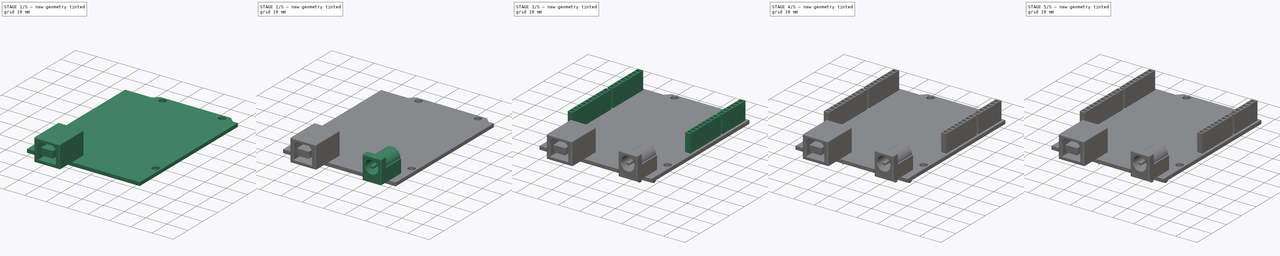
[diagram: build sequence overview — one tinted view per stage of 5, left to right]
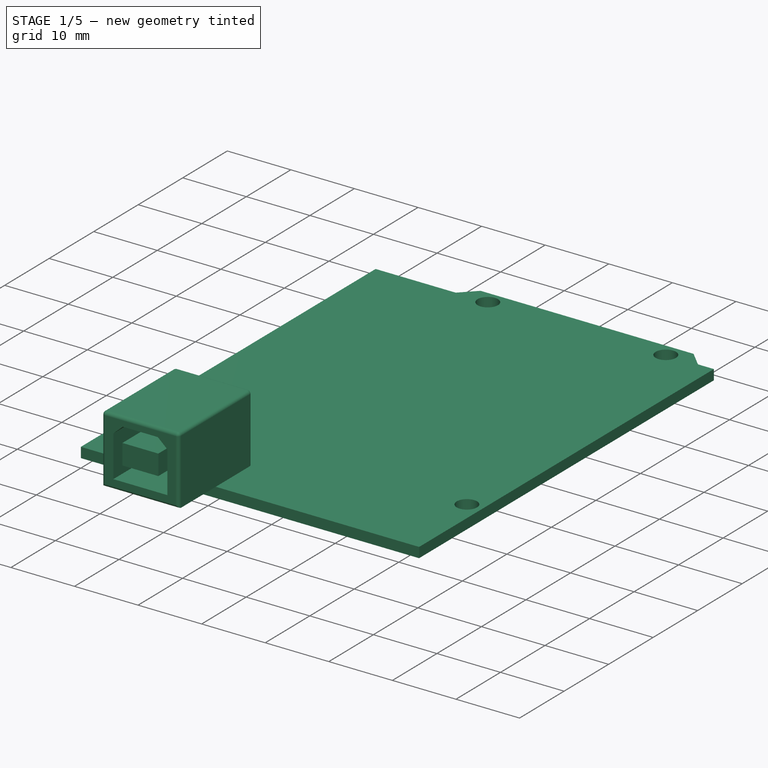
[diagram: stage 1 of 5 — iso view after this stage's code; geometry added in this stage tinted green]
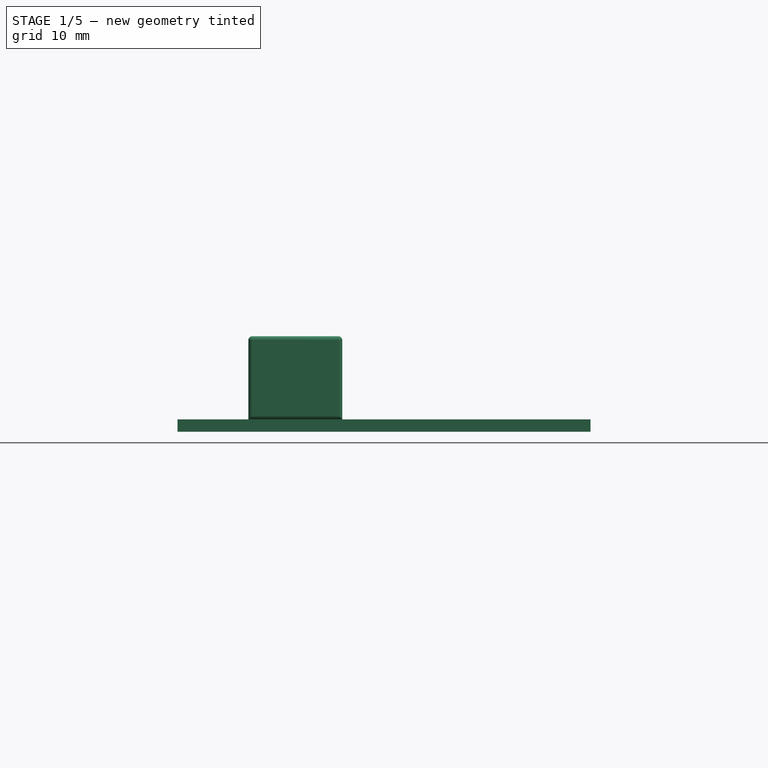
[diagram: stage 1 of 5 — front view after this stage's code; geometry added in this stage tinted green]
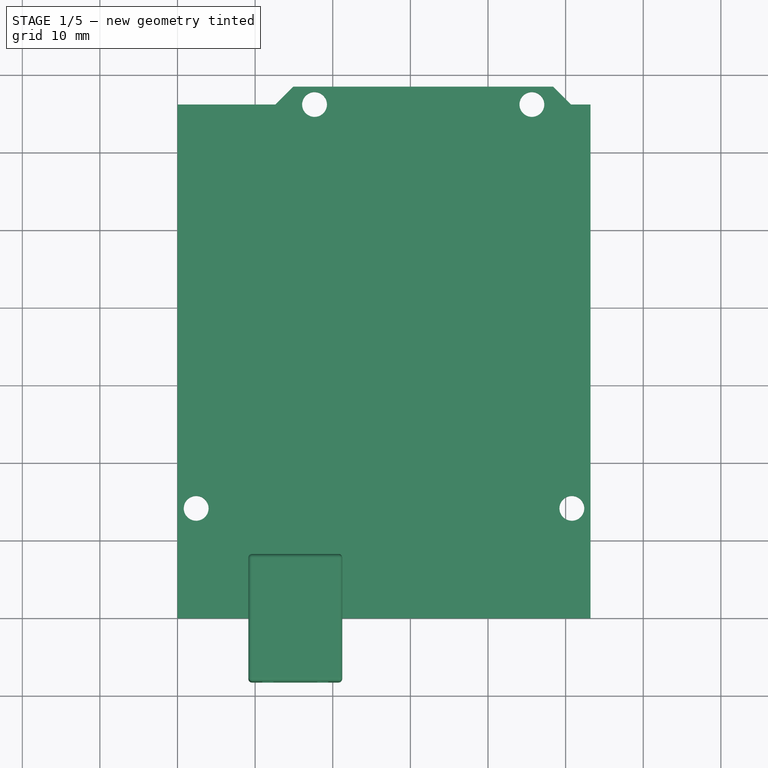
[diagram: stage 1 of 5 — top view after this stage's code; geometry added in this stage tinted green]
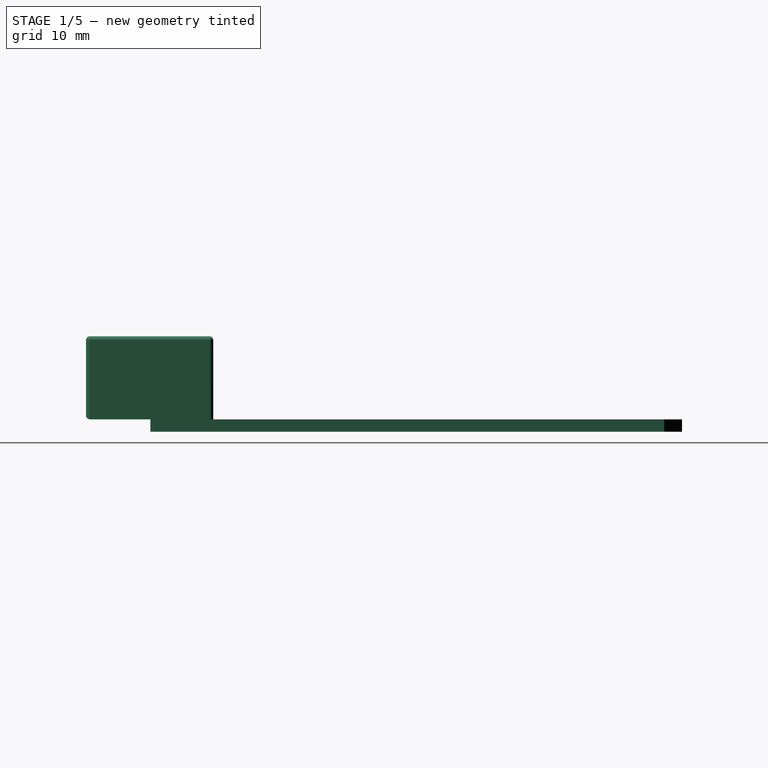
[diagram: stage 1 of 5 — right view after this stage's code; geometry added in this stage tinted green]
FCSTD DOCUMENT  (FreeCAD 0.20R)
Label: Arduino Uno
License: All rights reserved
LicenseURL: http://en.wikipedia.org/wiki/All_rights_reserved
objects: Sketcher::SketchObject×18, PartDesign::Pad×6, PartDesign::Pocket×6, PartDesign::Plane×6, PartDesign::Revolution×5, PartDesign::Fillet×4, PartDesign::LinearPattern×4, PartDesign::Mirrored×1, PartDesign::Body×1
note: 72 computed .brp shape members not serialized (recipe doc carries the construction recipe); baked Part::Feature solids carry a one-line shape summary decoded from their .brp

FEATURE [Sketcher::SketchObject] Sketch
  FullyConstrained = true
  MapMode = 5
  Support = -> [XY_Plane]
  sketch-geometry (9):
    g0: LineSegment StartX=0 StartY=0 StartZ=0 EndX=53.2 EndY=0 EndZ=0
    g1: LineSegment StartX=0 StartY=0 StartZ=0 EndX=0 EndY=66.2 EndZ=0
    g2: LineSegment StartX=0 StartY=66.2 StartZ=0 EndX=12.6 EndY=66.2 EndZ=0
    g3: LineSegment StartX=12.6 StartY=66.2 StartZ=0 EndX=14.9 EndY=68.5 EndZ=0
    g4: LineSegment StartX=14.9 StartY=68.5 StartZ=0 EndX=48.4 EndY=68.5 EndZ=0
    g5: LineSegment StartX=48.4 StartY=68.5 StartZ=0 EndX=50.7 EndY=66.2 EndZ=0
    g6: LineSegment StartX=50.7 StartY=66.2 StartZ=0 EndX=53.2 EndY=66.2 EndZ=0
    g7: LineSegment StartX=53.2 StartY=66.2 StartZ=0 EndX=53.2 EndY=0 EndZ=0
    g8: LineSegment StartX=12.6 StartY=66.2 StartZ=0 EndX=50.7 EndY=66.2 EndZ=0
  constraints (24):
    c: Coincident(g0,g-1)
    c: PointOnObject(g0,g-1)
    c: Coincident(g0,g1)
    c: PointOnObject(g1,g-2)
    c: Coincident(g1,g2)
    c: Horizontal(g2)
    c: Coincident(g2,g3)
    c: Coincident(g3,g4)
    c: Horizontal(g4)
    c: Coincident(g4,g5)
    c: Coincident(g5,g6)
    c: Coincident(g6,g7)
    c: Coincident(g7,g0)
    c: Vertical(g7)
    c: DistanceX(g0,g0) = 53.2
    c: DistanceY(g0,g3) = 68.5
    c: DistanceY(g0,g1) = 66.2
    c: Tangent(g2,g6)
    c: Coincident(g8,g2)
    c: Coincident(g8,g5)
    c: Angle(g8,g3) = 0.785398
    c: Angle(g5,g8) = 0.785398
    c: DistanceX(g6,g6) = 2.5
    c: DistanceX(g4,g4) = 33.5
FEATURE [PartDesign::Pad] Pad
  Direction = (0,0,1)
  Length = 1.6
  Length2 = 10
  Profile = -> Sketch
  ReferenceAxis = -> Sketch [N_Axis]
  Type = 0
FEATURE [Sketcher::SketchObject] Sketch001
  ExternalGeometry = -> [Pad]
  FullyConstrained = true
  MapMode = 5
  Placement = pos=(0,0,1.6) rot=(0,0,1;0rad)
  Support = -> [Pad]
  sketch-geometry (8):
    g0: Circle CenterX=17.65 CenterY=66.2 CenterZ=0 NormalX=0 NormalY=0 NormalZ=1 AngleXU=0 Radius=1.6
    g1: Circle CenterX=45.65 CenterY=66.2 CenterZ=0 NormalX=0 NormalY=0 NormalZ=1 AngleXU=0 Radius=1.6
    g2: LineSegment StartX=12.6 StartY=66.2 StartZ=0 EndX=17.65 EndY=66.2 EndZ=0
    g3: LineSegment StartX=45.65 StartY=66.2 StartZ=0 EndX=50.7 EndY=66.2 EndZ=0
    g4: Circle CenterX=2.4 CenterY=14.1619 CenterZ=0 NormalX=0 NormalY=0 NormalZ=1 AngleXU=0 Radius=1.6
    g5: Circle CenterX=50.8 CenterY=14.1619 CenterZ=0 NormalX=0 NormalY=0 NormalZ=1 AngleXU=0 Radius=1.6
    g6: LineSegment StartX=2.4 StartY=14.1619 StartZ=0 EndX=0 EndY=0 EndZ=0
    g7: LineSegment StartX=50.8 StartY=14.1619 StartZ=0 EndX=53.2 EndY=0 EndZ=0
  constraints (20):
    c: Diameter(g1) = 3.2
    c: Horizontal(g0,g1)
    c: DistanceX(g0,g1) = 28
    c: Coincident(g2,g-3)
    c: Coincident(g2,g0)
    c: Coincident(g3,g1)
    c: Coincident(g3,g-4)
    c: Equal(g2,g3)
    c: Horizontal(g2)
    c: Equal(g0,g1)
    c: Equal(g1,g5)
    c: Equal(g5,g4)
    c: DistanceX(g4,g5) = 48.4
    c: Horizontal(g4,g5)
    c: Coincident(g6,g4)
    c: Coincident(g6,g-1)
    c: Coincident(g7,g5)
    c: Coincident(g7,g-5)
    c: Equal(g6,g7)
    c: Distance(g0,g5) = 61.7
FEATURE [PartDesign::Pocket] Pocket
  BaseFeature = -> Pad
  Direction = (0,0,-1)
  Length = 5
  Length2 = 5
  Profile = -> Sketch001
  ReferenceAxis = -> Sketch001 [N_Axis]
  Type = 1
FEATURE [Sketcher::SketchObject] Sketch002
  FullyConstrained = true
  MapMode = 5
  Placement = pos=(0,0,1.6) rot=(0,0,1;0rad)
  Support = -> [Pocket]
  sketch-geometry (4):
    g0: LineSegment StartX=9.12 StartY=8.1 StartZ=0 EndX=21.22 EndY=8.1 EndZ=0
    g1: LineSegment StartX=21.22 StartY=8.1 StartZ=0 EndX=21.22 EndY=-8.3 EndZ=0
    g2: LineSegment StartX=21.22 StartY=-8.3 StartZ=0 EndX=9.12 EndY=-8.3 EndZ=0
    g3: LineSegment StartX=9.12 StartY=-8.3 StartZ=0 EndX=9.12 EndY=8.1 EndZ=0
  constraints (12):
    c: Coincident(g0,g1)
    c: Coincident(g1,g2)
    c: Coincident(g2,g3)
    c: Coincident(g3,g0)
    c: Horizontal(g0)
    c: Horizontal(g2)
    c: Vertical(g1)
    c: Vertical(g3)
    c: DistanceY(g2,g-1) = 8.3
    c: DistanceX(g2,g1) = 12.1
    c: DistanceY(g1,g0) = 16.4
    c: DistanceX(g-1,g2) = 9.12
FEATURE [PartDesign::Pad] Pad001
  BaseFeature = -> Pocket
  Direction = (0,0,1)
  Length = 10.7
  Length2 = 10
  Profile = -> Sketch002
  ReferenceAxis = -> Sketch002 [N_Axis]
  Type = 0
FEATURE [Sketcher::SketchObject] Sketch003
  ExternalGeometry = -> [Pad001]
  FullyConstrained = true
  MapMode = 5
  Placement = pos=(0,-8.3,0) rot=(1,0,0;1.5708rad)
  Support = -> [Pad001]
  sketch-geometry (16):
    g0: LineSegment StartX=10.92 StartY=3.1 StartZ=0 EndX=10.92 EndY=9.6 EndZ=0
    g1: LineSegment StartX=10.92 StartY=9.6 StartZ=0 EndX=12.42 EndY=10.95 EndZ=0
    g2: LineSegment StartX=12.42 StartY=10.95 StartZ=0 EndX=17.92 EndY=10.95 EndZ=0
    g3: LineSegment StartX=17.92 StartY=10.95 StartZ=0 EndX=19.42 EndY=9.6 EndZ=0
    g4: LineSegment StartX=19.42 StartY=9.6 StartZ=0 EndX=19.42 EndY=3.1 EndZ=0
    g5: LineSegment StartX=19.42 StartY=3.1 StartZ=0 EndX=10.92 EndY=3.1 EndZ=0
    g6: LineSegment StartX=10.92 StartY=3.1 StartZ=0 EndX=9.12 EndY=1.6 EndZ=0
    g7: LineSegment StartX=19.42 StartY=3.1 StartZ=0 EndX=21.22 EndY=1.6 EndZ=0
    g8: LineSegment StartX=12.345 StartY=8.625 StartZ=0 EndX=17.995 EndY=8.625 EndZ=0
    g9: LineSegment StartX=17.995 StartY=8.625 StartZ=0 EndX=17.995 EndY=5.425 EndZ=0
    g10: LineSegment StartX=17.995 StartY=5.425 StartZ=0 EndX=12.345 EndY=5.425 EndZ=0
    g11: LineSegment StartX=12.345 StartY=5.425 StartZ=0 EndX=12.345 EndY=8.625 EndZ=0
    g12: LineSegment StartX=12.345 StartY=5.425 StartZ=0 EndX=10.92 EndY=3.1 EndZ=0
    g13: LineSegment StartX=17.995 StartY=5.425 StartZ=0 EndX=19.42 EndY=3.1 EndZ=0
    g14: LineSegment StartX=17.92 StartY=10.95 StartZ=0 EndX=17.92 EndY=8.625 EndZ=0
    g15: LineSegment StartX=17.995 StartY=5.425 StartZ=0 EndX=17.995 EndY=3.1 EndZ=0
  constraints (44):
    c: Vertical(g0)
    c: Coincident(g0,g1)
    c: Coincident(g1,g2)
    c: Horizontal(g2)
    c: Coincident(g2,g3)
    c: Coincident(g3,g4)
    c: Vertical(g4)
    c: Coincident(g4,g5)
    c: Coincident(g5,g0)
    c: Horizontal(g5)
    c: DistanceX(g0,g4) = 8.5
    c: DistanceY(g4,g2) = 7.85
    c: Equal(g1,g3)
    c: DistanceX(g2,g2) = 5.5
    c: Horizontal(g3,g0)
    c: DistanceY(g0,g0) = 6.5
    c: Coincident(g6,g0)
    c: Coincident(g6,g-6)
    c: Coincident(g7,g4)
    c: Coincident(g7,g-6)
    c: Equal(g7,g6)
    c: DistanceY(g6,g0) = 1.5
    c: Coincident(g8,g9)
    c: Coincident(g9,g10)
    c: Coincident(g10,g11)
    c: Coincident(g11,g8)
    c: Horizontal(g8)
    c: Horizontal(g10)
    c: Vertical(g9)
    c: Vertical(g11)
    c: Coincident(g12,g10)
    c: Coincident(g12,g0)
    c: Coincident(g13,g9)
    c: Coincident(g13,g4)
    c: Equal(g13,g12)
    c: DistanceY(g10,g8) = 3.2
    c: DistanceX(g10,g9) = 5.65
    c: Coincident(g14,g2)
    c: PointOnObject(g14,g8)
    c: Vertical(g14)
    c: Coincident(g15,g9)
    c: PointOnObject(g15,g5)
    c: Vertical(g15)
    c: Equal(g15,g14)
FEATURE [PartDesign::Pocket] Pocket001
  BaseFeature = -> Pad001
  Direction = (0,1,-2e-16)
  Length = 15
  Length2 = 5
  Profile = -> Sketch003
  ReferenceAxis = -> Sketch003 [N_Axis]
  Type = 0
FEATURE [PartDesign::Fillet] Fillet
  Base = -> Pocket001 [Edge46,Edge35,Edge50,Edge52,Edge47,Edge51,Edge49,Edge48,Edge45]
  BaseFeature = -> Pocket001
  Radius = 0.5
  SupportTransform = false
  UseAllEdges = false
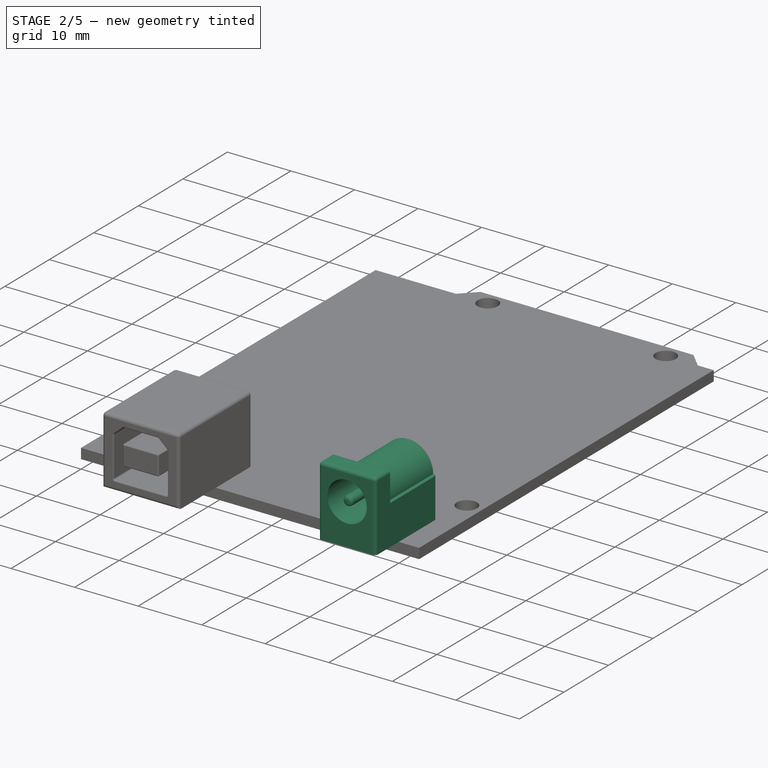
[diagram: stage 2 of 5 — iso view after this stage's code; geometry added in this stage tinted green]
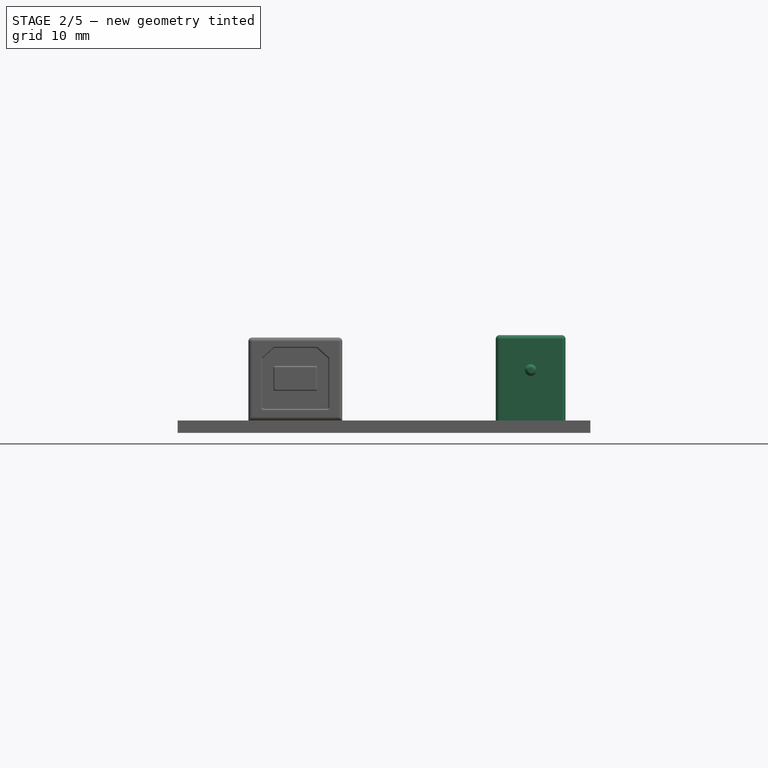
[diagram: stage 2 of 5 — front view after this stage's code; geometry added in this stage tinted green]
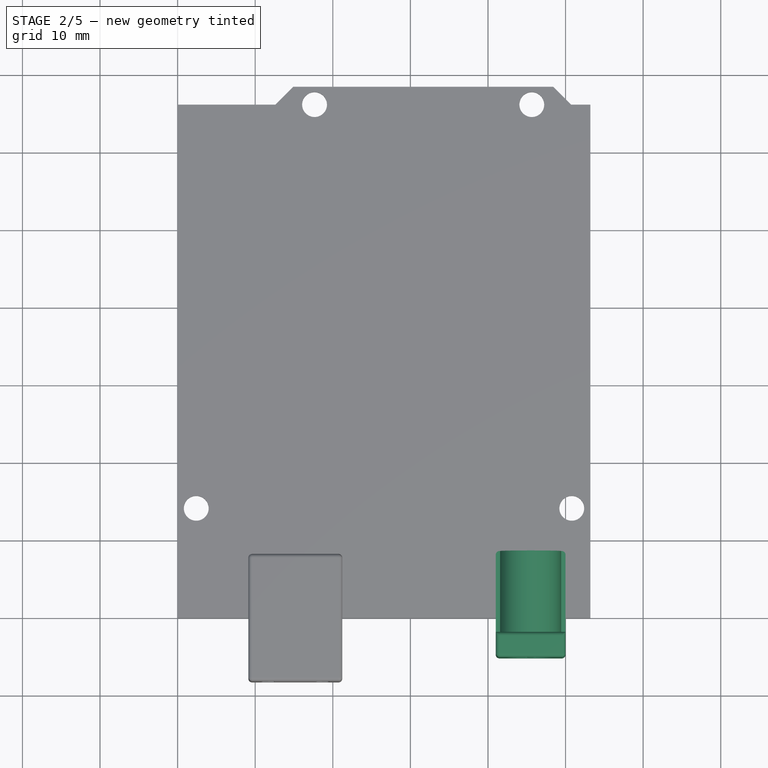
[diagram: stage 2 of 5 — top view after this stage's code; geometry added in this stage tinted green]
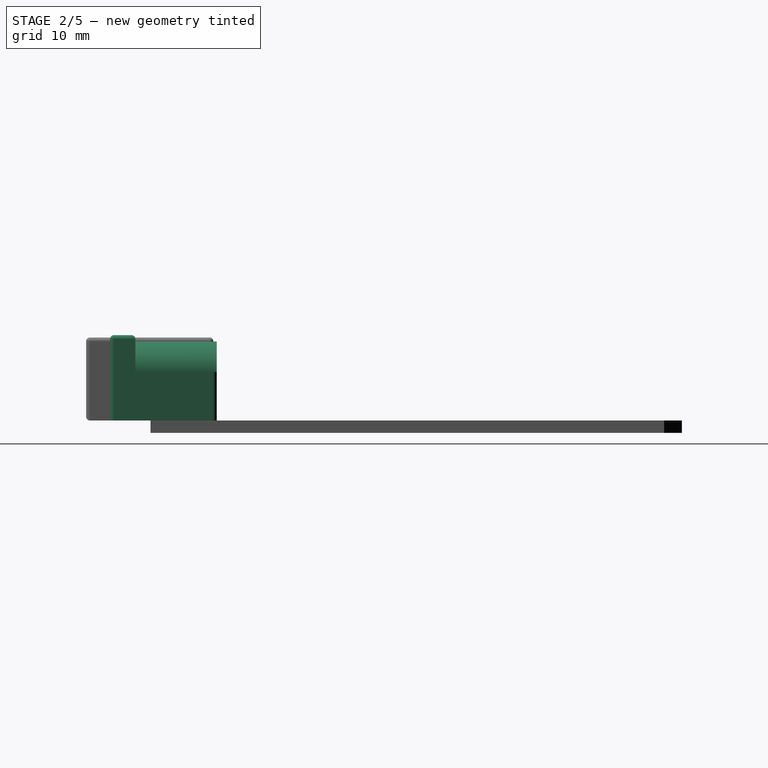
[diagram: stage 2 of 5 — right view after this stage's code; geometry added in this stage tinted green]
FEATURE [PartDesign::Fillet] Fillet001
  Base = -> Fillet [Edge105,Edge107,Edge108,Edge106,Edge104,Edge111,Edge110,Edge109,Edge93,Edge91,Edge82,Edge83,Edge84,Edge85,Edge80,Edge81,Edge89,Edge88,Edge95,Edge97]
  BaseFeature = -> Fillet
  Radius = 0.2
  SupportTransform = false
  UseAllEdges = false
FEATURE [Sketcher::SketchObject] Sketch004
  ExternalGeometry = -> [Fillet001]
  FullyConstrained = true
  MapMode = 5
  Placement = pos=(0,0,1.6) rot=(0,0,1;0rad)
  Support = -> [Fillet001]
  sketch-geometry (4):
    g0: LineSegment StartX=41 StartY=8.55 StartZ=0 EndX=50 EndY=8.55 EndZ=0
    g1: LineSegment StartX=50 StartY=8.55 StartZ=0 EndX=50 EndY=-5.2 EndZ=0
    g2: LineSegment StartX=50 StartY=-5.2 StartZ=0 EndX=41 EndY=-5.2 EndZ=0
    g3: LineSegment StartX=41 StartY=-5.2 StartZ=0 EndX=41 EndY=8.55 EndZ=0
  constraints (12):
    c: Coincident(g0,g1)
    c: Coincident(g1,g2)
    c: Coincident(g2,g3)
    c: Coincident(g3,g0)
    c: Horizontal(g0)
    c: Horizontal(g2)
    c: Vertical(g1)
    c: Vertical(g3)
    c: DistanceX(g1,g-3) = 3.2
    c: DistanceX(g2,g1) = 9
    c: DistanceY(g2,g0) = 13.75
    c: DistanceY(g1,g-3) = 5.2
FEATURE [PartDesign::Pad] Pad002
  BaseFeature = -> Fillet001
  Direction = (0,0,1)
  Length = 11
  Length2 = 10
  Profile = -> Sketch004
  ReferenceAxis = -> Sketch004 [N_Axis]
  Type = 0
FEATURE [Sketcher::SketchObject] Sketch005
  ExternalGeometry = -> [Pad002]
  FullyConstrained = true
  MapMode = 5
  Placement = pos=(0,8.55,0) rot=(0,0.707107,0.707107;3.14159rad)
  Support = -> [Pad002]
  sketch-geometry (9):
    g0: ArcOfCircle CenterX=-45.5 CenterY=7.85 CenterZ=0 NormalX=0 NormalY=0 NormalZ=1 AngleXU=0 Radius=3.925 StartAngle=-8.9e-15 EndAngle=3.14159
    g1: LineSegment StartX=-49.425 StartY=7.85 StartZ=0 EndX=-41.575 EndY=7.85 EndZ=0
    g2: LineSegment StartX=-41.575 StartY=7.85 StartZ=0 EndX=-41 EndY=1.6 EndZ=0
    g3: LineSegment StartX=-49.425 StartY=7.85 StartZ=0 EndX=-50 EndY=1.6 EndZ=0
    g4: LineSegment StartX=-41.575 StartY=7.85 StartZ=0 EndX=-33.725 EndY=7.85 EndZ=0
    g5: LineSegment StartX=-33.725 StartY=7.85 StartZ=0 EndX=-33.725 EndY=15.7 EndZ=0
    g6: LineSegment StartX=-33.725 StartY=15.7 StartZ=0 EndX=-57.275 EndY=15.7 EndZ=0
    g7: LineSegment StartX=-57.275 StartY=15.7 StartZ=0 EndX=-57.275 EndY=7.85 EndZ=0
    g8: LineSegment StartX=-57.275 StartY=7.85 StartZ=0 EndX=-49.425 EndY=7.85 EndZ=0
  constraints (25):
    c: Coincident(g1,g0)
    c: Coincident(g1,g0)
    c: Horizontal(g1)
    c: PointOnObject(g0,g1)
    c: DistanceX(g0,g0) = 7.85
    c: Coincident(g2,g0)
    c: Coincident(g2,g-3)
    c: Coincident(g3,g0)
    c: Coincident(g3,g-4)
    c: Equal(g2,g3)
    c: DistanceY(g0,g-3) = 4.75
    c: Horizontal(g4)
    c: Coincident(g4,g5)
    c: Vertical(g5)
    c: Coincident(g5,g6)
    c: Horizontal(g6)
    c: Coincident(g6,g7)
    c: Vertical(g7)
    c: Coincident(g7,g8)
    c: Coincident(g8,g0)
    c: Horizontal(g8)
    c: Equal(g8,g4)
    c: Equal(g1,g7)
    c: Coincident(g4,g0)
    c: Equal(g7,g8)
FEATURE [PartDesign::Pocket] Pocket002
  BaseFeature = -> Pad002
  Direction = (0,-1,2e-16)
  Length = 10.5
  Length2 = 5
  Profile = -> Sketch005
  ReferenceAxis = -> Sketch005 [N_Axis]
  Type = 0
FEATURE [Sketcher::SketchObject] Sketch006
  ExternalGeometry = -> [Pocket002]
  FullyConstrained = true
  MapMode = 5
  Placement = pos=(0,-5.2,0) rot=(1,0,0;1.5708rad)
  Support = -> [Pocket002]
  sketch-geometry (4):
    g0: Circle CenterX=45.5 CenterY=8.1 CenterZ=0 NormalX=0 NormalY=0 NormalZ=1 AngleXU=0 Radius=3.1
    g1: Circle CenterX=45.5 CenterY=8.1 CenterZ=0 NormalX=0 NormalY=0 NormalZ=1 AngleXU=0 Radius=0.75
    g2: LineSegment StartX=45.5 StartY=8.1 StartZ=0 EndX=41 EndY=12.6 EndZ=0
    g3: LineSegment StartX=45.5 StartY=8.1 StartZ=0 EndX=50 EndY=12.6 EndZ=0
  constraints (9):
    c: Diameter(g0) = 6.2
    c: Coincident(g1,g0)
    c: Diameter(g1) = 1.5
    c: Coincident(g2,g0)
    c: Coincident(g2,g-3)
    c: Coincident(g3,g0)
    c: Coincident(g3,g-4)
    c: Equal(g3,g2)
    c: DistanceY(g2,g2) = 4.5
FEATURE [PartDesign::Pocket] Pocket003
  BaseFeature = -> Pocket002
  Direction = (0,1,-2e-16)
  Length = 10
  Length2 = 5
  Profile = -> Sketch006
  ReferenceAxis = -> Sketch006 [N_Axis]
  Type = 0
FEATURE [PartDesign::Fillet] Fillet002
  Base = -> Pocket003 [Edge215,Edge174,Edge163,Edge203,Edge205,Edge175,Edge162,Edge170,Edge166]
  BaseFeature = -> Pocket003
  Radius = 0.5
  SupportTransform = false
  UseAllEdges = false
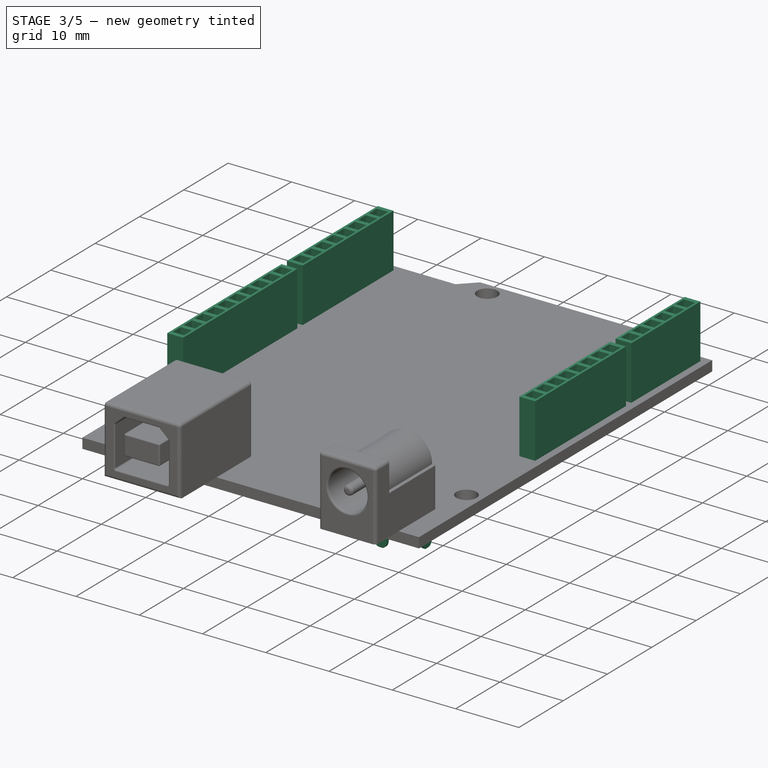
[diagram: stage 3 of 5 — iso view after this stage's code; geometry added in this stage tinted green]
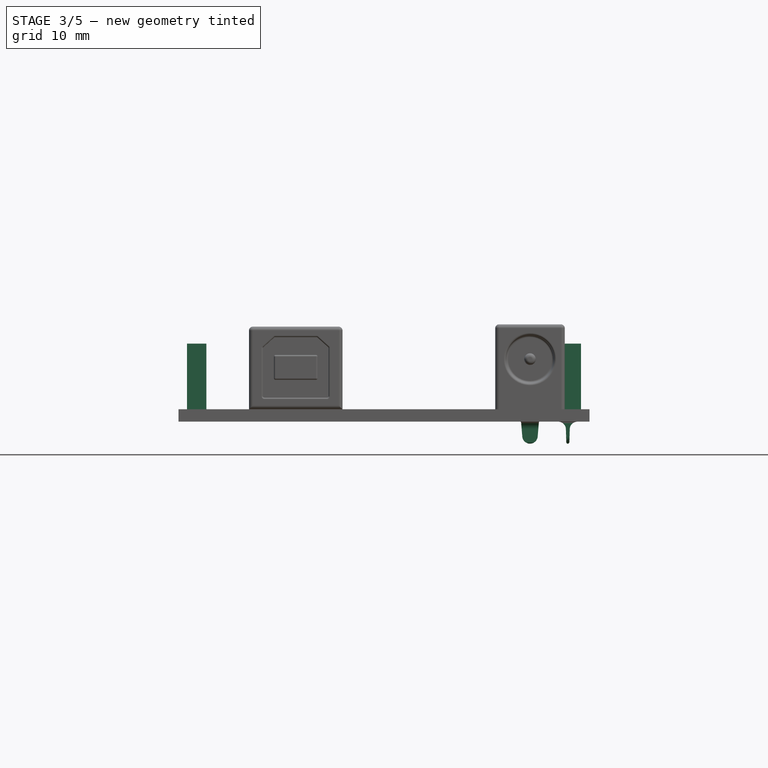
[diagram: stage 3 of 5 — front view after this stage's code; geometry added in this stage tinted green]
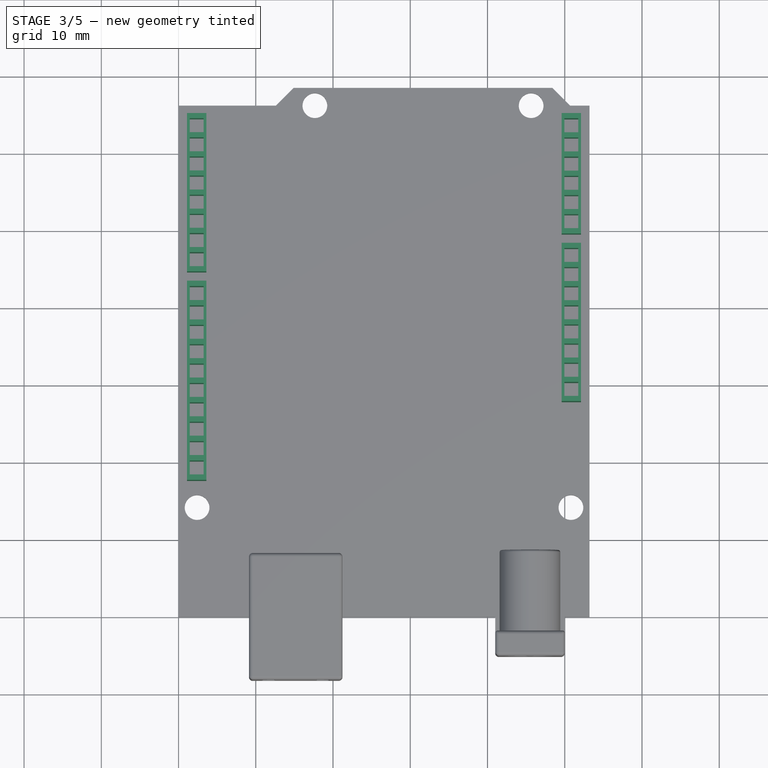
[diagram: stage 3 of 5 — top view after this stage's code; geometry added in this stage tinted green]
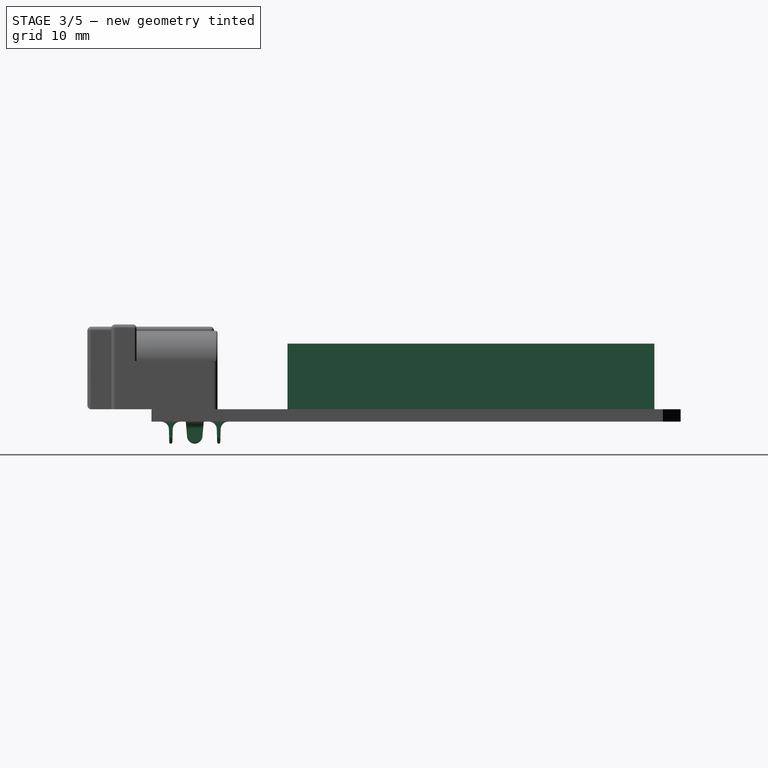
[diagram: stage 3 of 5 — right view after this stage's code; geometry added in this stage tinted green]
FEATURE [PartDesign::Fillet] Fillet003
  Base = -> Fillet002 [Edge121,Edge148,Edge51,Edge29,Edge41]
  BaseFeature = -> Fillet002
  Radius = 0.3
  SupportTransform = false
  UseAllEdges = false
FEATURE [Sketcher::SketchObject] Sketch007
  ExternalGeometry = -> [Fillet003]
  FullyConstrained = true
  MapMode = 5
  Placement = pos=(0,0,1.6) rot=(0,0,1;0rad)
  Support = -> [Fillet003]
  sketch-geometry (189):
    g0: LineSegment StartX=1.1 StartY=65.1 StartZ=0 EndX=3.6 EndY=65.1 EndZ=0
    g1: LineSegment StartX=3.6 StartY=65.1 StartZ=0 EndX=3.6 EndY=44.6 EndZ=0
    g2: LineSegment StartX=3.6 StartY=44.6 StartZ=0 EndX=1.1 EndY=44.6 EndZ=0
    g3: LineSegment StartX=1.1 StartY=44.6 StartZ=0 EndX=1.1 EndY=65.1 EndZ=0
    g4: LineSegment StartX=1.45 StartY=64.4222 StartZ=0 EndX=3.25 EndY=64.4222 EndZ=0
    g5: LineSegment StartX=3.25 StartY=64.4222 StartZ=0 EndX=3.25 EndY=62.6222 EndZ=0
    g6: LineSegment StartX=3.25 StartY=62.6222 StartZ=0 EndX=1.45 EndY=62.6222 EndZ=0
    g7: LineSegment StartX=1.45 StartY=62.6222 StartZ=0 EndX=1.45 EndY=64.4222 EndZ=0
    g8: LineSegment StartX=1.1 StartY=65.1 StartZ=0 EndX=1.45 EndY=64.4222 EndZ=0
    g9: LineSegment StartX=3.25 StartY=64.4222 StartZ=0 EndX=3.6 EndY=65.1 EndZ=0
    g10: LineSegment StartX=1.45 StartY=61.9444 StartZ=0 EndX=3.25 EndY=61.9444 EndZ=0
    g11: LineSegment StartX=1.45 StartY=60.1444 StartZ=0 EndX=1.45 EndY=61.9444 EndZ=0
    g12: LineSegment StartX=3.25 StartY=60.1444 StartZ=0 EndX=1.45 EndY=60.1444 EndZ=0
    g13: LineSegment StartX=3.25 StartY=61.9444 StartZ=0 EndX=3.25 EndY=60.1444 EndZ=0
    g14: LineSegment StartX=1.45 StartY=64.4222 StartZ=0 EndX=1.45 EndY=61.9444 EndZ=0
    g15: LineSegment StartX=1.45 StartY=59.4667 StartZ=0 EndX=3.25 EndY=59.4667 EndZ=0
    g16: LineSegment StartX=1.45 StartY=57.6667 StartZ=0 EndX=1.45 EndY=59.4667 EndZ=0
    g17: LineSegment StartX=3.25 StartY=57.6667 StartZ=0 EndX=1.45 EndY=57.6667 EndZ=0
    g18: LineSegment StartX=3.25 StartY=59.4667 StartZ=0 EndX=3.25 EndY=57.6667 EndZ=0
    g19: LineSegment StartX=1.45 StartY=61.9444 StartZ=0 EndX=1.45 EndY=59.4667 EndZ=0
    g20: LineSegment StartX=1.45 StartY=56.9889 StartZ=0 EndX=3.25 EndY=56.9889 EndZ=0
    g21: LineSegment StartX=1.45 StartY=55.1889 StartZ=0 EndX=1.45 EndY=56.9889 EndZ=0
    g22: LineSegment StartX=3.25 StartY=55.1889 StartZ=0 EndX=1.45 EndY=55.1889 EndZ=0
    g23: LineSegment StartX=3.25 StartY=56.9889 StartZ=0 EndX=3.25 EndY=55.1889 EndZ=0
    g24: LineSegment StartX=1.45 StartY=59.4667 StartZ=0 EndX=1.45 EndY=56.9889 EndZ=0
    g25: LineSegment StartX=1.45 StartY=54.5111 StartZ=0 EndX=3.25 EndY=54.5111 EndZ=0
    g26: LineSegment StartX=1.45 StartY=52.7111 StartZ=0 EndX=1.45 EndY=54.5111 EndZ=0
    g27: LineSegment StartX=3.25 StartY=52.7111 StartZ=0 EndX=1.45 EndY=52.7111 EndZ=0
    g28: LineSegment StartX=3.25 StartY=54.5111 StartZ=0 EndX=3.25 EndY=52.7111 EndZ=0
    g29: LineSegment StartX=1.45 StartY=56.9889 StartZ=0 EndX=1.45 EndY=54.5111 EndZ=0
    g30: LineSegment StartX=1.45 StartY=52.0333 StartZ=0 EndX=3.25 EndY=52.0333 EndZ=0
    g31: LineSegment StartX=1.45 StartY=50.2333 StartZ=0 EndX=1.45 EndY=52.0333 EndZ=0
    g32: LineSegment StartX=3.25 StartY=50.2333 StartZ=0 EndX=1.45 EndY=50.2333 EndZ=0
    g33: LineSegment StartX=3.25 StartY=52.0333 StartZ=0 EndX=3.25 EndY=50.2333 EndZ=0
    g34: LineSegment StartX=1.45 StartY=54.5111 StartZ=0 EndX=1.45 EndY=52.0333 EndZ=0
    g35: LineSegment StartX=1.45 StartY=49.5556 StartZ=0 EndX=3.25 EndY=49.5556 EndZ=0
    g36: LineSegment StartX=1.45 StartY=47.7556 StartZ=0 EndX=1.45 EndY=49.5556 EndZ=0
    g37: LineSegment StartX=3.25 StartY=47.7556 StartZ=0 EndX=1.45 EndY=47.7556 EndZ=0
    g38: LineSegment StartX=3.25 StartY=49.5556 StartZ=0 EndX=3.25 EndY=47.7556 EndZ=0
    g39: LineSegment StartX=1.45 StartY=52.0333 StartZ=0 EndX=1.45 EndY=49.5556 EndZ=0
    g40: LineSegment StartX=1.45 StartY=47.0778 StartZ=0 EndX=3.25 EndY=47.0778 EndZ=0
    g41: LineSegment StartX=1.45 StartY=45.2778 StartZ=0 EndX=1.45 EndY=47.0778 EndZ=0
    g42: LineSegment StartX=3.25 StartY=45.2778 StartZ=0 EndX=1.45 EndY=45.2778 EndZ=0
    g43: LineSegment StartX=3.25 StartY=47.0778 StartZ=0 EndX=3.25 EndY=45.2778 EndZ=0
    g44: LineSegment StartX=1.45 StartY=49.5556 StartZ=0 EndX=1.45 EndY=47.0778 EndZ=0
    g45: LineSegment StartX=3.25 StartY=61.9444 StartZ=0 EndX=3.25 EndY=62.6222 EndZ=0
    g46: LineSegment StartX=3.25 StartY=64.4222 StartZ=0 EndX=3.25 EndY=65.1 EndZ=0
    g47: LineSegment StartX=3.25 StartY=45.2778 StartZ=0 EndX=3.25 EndY=44.6 EndZ=0
    g48: LineSegment StartX=1.1 StartY=43.4 StartZ=0 EndX=3.6 EndY=43.4 EndZ=0
    g49: LineSegment StartX=3.6 StartY=43.4 StartZ=0 EndX=3.6 EndY=17.6 EndZ=0
    g50: LineSegment StartX=3.6 StartY=17.6 StartZ=0 EndX=1.1 EndY=17.6 EndZ=0
    g51: LineSegment StartX=1.1 StartY=17.6 StartZ=0 EndX=1.1 EndY=43.4 EndZ=0
    g52: LineSegment StartX=1.45 StartY=42.6909 StartZ=0 EndX=3.25 EndY=42.6909 EndZ=0
    g53: LineSegment StartX=3.25 StartY=42.6909 StartZ=0 EndX=3.25 EndY=40.8909 EndZ=0
    g54: LineSegment StartX=3.25 StartY=40.8909 StartZ=0 EndX=1.45 EndY=40.8909 EndZ=0
    g55: LineSegment StartX=1.45 StartY=40.8909 StartZ=0 EndX=1.45 EndY=42.6909 EndZ=0
    g56: LineSegment StartX=3.25 StartY=40.1818 StartZ=0 EndX=3.25 EndY=38.3818 EndZ=0
    g57: LineSegment StartX=3.25 StartY=38.3818 StartZ=0 EndX=1.45 EndY=38.3818 EndZ=0
    g58: LineSegment StartX=1.45 StartY=38.3818 StartZ=0 EndX=1.45 EndY=40.1818 EndZ=0
    g59: LineSegment StartX=1.45 StartY=40.1818 StartZ=0 EndX=3.25 EndY=40.1818 EndZ=0
    g60: LineSegment StartX=3.25 StartY=42.6909 StartZ=0 EndX=3.25 EndY=40.1818 EndZ=0
    g61: LineSegment StartX=3.25 StartY=37.6727 StartZ=0 EndX=3.25 EndY=35.8727 EndZ=0
    g62: LineSegment StartX=3.25 StartY=35.8727 StartZ=0 EndX=1.45 EndY=35.8727 EndZ=0
    g63: LineSegment StartX=1.45 StartY=35.8727 StartZ=0 EndX=1.45 EndY=37.6727 EndZ=0
    g64: LineSegment StartX=1.45 StartY=37.6727 StartZ=0 EndX=3.25 EndY=37.6727 EndZ=0
    g65: LineSegment StartX=3.25 StartY=40.1818 StartZ=0 EndX=3.25 EndY=37.6727 EndZ=0
    g66: LineSegment StartX=3.25 StartY=35.1636 StartZ=0 EndX=3.25 EndY=33.3636 EndZ=0
    g67: LineSegment StartX=3.25 StartY=33.3636 StartZ=0 EndX=1.45 EndY=33.3636 EndZ=0
    g68: LineSegment StartX=1.45 StartY=33.3636 StartZ=0 EndX=1.45 EndY=35.1636 EndZ=0
    g69: LineSegment StartX=1.45 StartY=35.1636 StartZ=0 EndX=3.25 EndY=35.1636 EndZ=0
    g70: LineSegment StartX=3.25 StartY=37.6727 StartZ=0 EndX=3.25 EndY=35.1636 EndZ=0
    g71: LineSegment StartX=3.25 StartY=32.6545 StartZ=0 EndX=3.25 EndY=30.8545 EndZ=0
    g72: LineSegment StartX=3.25 StartY=30.8545 StartZ=0 EndX=1.45 EndY=30.8545 EndZ=0
    g73: LineSegment StartX=1.45 StartY=30.8545 StartZ=0 EndX=1.45 EndY=32.6545 EndZ=0
    g74: LineSegment StartX=1.45 StartY=32.6545 StartZ=0 EndX=3.25 EndY=32.6545 EndZ=0
    g75: LineSegment StartX=3.25 StartY=35.1636 StartZ=0 EndX=3.25 EndY=32.6545 EndZ=0
    g76: LineSegment StartX=3.25 StartY=30.1455 StartZ=0 EndX=3.25 EndY=28.3455 EndZ=0
    g77: LineSegment StartX=3.25 StartY=28.3455 StartZ=0 EndX=1.45 EndY=28.3455 EndZ=0
    g78: LineSegment StartX=1.45 StartY=28.3455 StartZ=0 EndX=1.45 EndY=30.1455 EndZ=0
    g79: LineSegment StartX=1.45 StartY=30.1455 StartZ=0 EndX=3.25 EndY=30.1455 EndZ=0
    g80: LineSegment StartX=3.25 StartY=32.6545 StartZ=0 EndX=3.25 EndY=30.1455 EndZ=0
    g81: LineSegment StartX=3.25 StartY=27.6364 StartZ=0 EndX=3.25 EndY=25.8364 EndZ=0
    g82: LineSegment StartX=3.25 StartY=25.8364 StartZ=0 EndX=1.45 EndY=25.8364 EndZ=0
    g83: LineSegment StartX=1.45 StartY=25.8364 StartZ=0 EndX=1.45 EndY=27.6364 EndZ=0
    g84: LineSegment StartX=1.45 StartY=27.6364 StartZ=0 EndX=3.25 EndY=27.6364 EndZ=0
    g85: LineSegment StartX=3.25 StartY=30.1455 StartZ=0 EndX=3.25 EndY=27.6364 EndZ=0
    g86: LineSegment StartX=3.25 StartY=25.1273 StartZ=0 EndX=3.25 EndY=23.3273 EndZ=0
    g87: LineSegment StartX=3.25 StartY=23.3273 StartZ=0 EndX=1.45 EndY=23.3273 EndZ=0
    g88: LineSegment StartX=1.45 StartY=23.3273 StartZ=0 EndX=1.45 EndY=25.1273 EndZ=0
    g89: LineSegment StartX=1.45 StartY=25.1273 StartZ=0 EndX=3.25 EndY=25.1273 EndZ=0
    g90: LineSegment StartX=3.25 StartY=27.6364 StartZ=0 EndX=3.25 EndY=25.1273 EndZ=0
    g91: LineSegment StartX=3.25 StartY=22.6182 StartZ=0 EndX=3.25 EndY=20.8182 EndZ=0
    g92: LineSegment StartX=3.25 StartY=20.8182 StartZ=0 EndX=1.45 EndY=20.8182 EndZ=0
    g93: LineSegment StartX=1.45 StartY=20.8182 StartZ=0 EndX=1.45 EndY=22.6182 EndZ=0
    g94: LineSegment StartX=1.45 StartY=22.6182 StartZ=0 EndX=3.25 EndY=22.6182 EndZ=0
    g95: LineSegment StartX=3.25 StartY=25.1273 StartZ=0 EndX=3.25 EndY=22.6182 EndZ=0
    g96: LineSegment StartX=3.25 StartY=20.1091 StartZ=0 EndX=3.25 EndY=18.3091 EndZ=0
    g97: LineSegment StartX=3.25 StartY=18.3091 StartZ=0 EndX=1.45 EndY=18.3091 EndZ=0
    g98: LineSegment StartX=1.45 StartY=18.3091 StartZ=0 EndX=1.45 EndY=20.1091 EndZ=0
    g99: LineSegment StartX=1.45 StartY=20.1091 StartZ=0 EndX=3.25 EndY=20.1091 EndZ=0
    g100: LineSegment StartX=3.25 StartY=22.6182 StartZ=0 EndX=3.25 EndY=20.1091 EndZ=0
    g101: LineSegment StartX=1.45 StartY=42.6909 StartZ=0 EndX=1.45 EndY=43.4 EndZ=0
    g102: LineSegment StartX=1.45 StartY=40.8909 StartZ=0 EndX=1.45 EndY=40.1818 EndZ=0
    g103: LineSegment StartX=1.45 StartY=18.3091 StartZ=0 EndX=1.45 EndY=17.6 EndZ=0
    g104: LineSegment StartX=49.6 StartY=65.1 StartZ=0 EndX=52.1 EndY=65.1 EndZ=0
    g105: LineSegment StartX=52.1 StartY=65.1 StartZ=0 EndX=52.1 EndY=49.5 EndZ=0
    g106: LineSegment StartX=52.1 StartY=49.5 StartZ=0 EndX=49.6 EndY=49.5 EndZ=0
    g107: LineSegment StartX=49.6 StartY=49.5 StartZ=0 EndX=49.6 EndY=65.1 EndZ=0
    g108: LineSegment StartX=49.6 StartY=48.3 StartZ=0 EndX=52.1 EndY=48.3 EndZ=0
    g109: LineSegment StartX=52.1 StartY=48.3 StartZ=0 EndX=52.1 EndY=27.8 EndZ=0
    g110: LineSegment StartX=52.1 StartY=27.8 StartZ=0 EndX=49.6 EndY=27.8 EndZ=0
    g111: LineSegment StartX=49.6 StartY=27.8 StartZ=0 EndX=49.6 EndY=48.3 EndZ=0
    g112: LineSegment StartX=49.95 StartY=64.4143 StartZ=0 EndX=51.75 EndY=64.4143 EndZ=0
    g113: LineSegment StartX=51.75 StartY=64.4143 StartZ=0 EndX=51.75 EndY=62.6143 EndZ=0
    g114: LineSegment StartX=51.75 StartY=62.6143 StartZ=0 EndX=49.95 EndY=62.6143 EndZ=0
    g115: LineSegment StartX=49.95 StartY=62.6143 StartZ=0 EndX=49.95 EndY=64.4143 EndZ=0
    g116: LineSegment StartX=49.95 StartY=64.4143 StartZ=0 EndX=49.6 EndY=65.1 EndZ=0
    g117: LineSegment StartX=51.75 StartY=64.4143 StartZ=0 EndX=52.1 EndY=65.1 EndZ=0
    g118: LineSegment StartX=49.95 StartY=60.1286 StartZ=0 EndX=49.95 EndY=61.9286 EndZ=0
    g119: LineSegment StartX=51.75 StartY=60.1286 StartZ=0 EndX=49.95 EndY=60.1286 EndZ=0
    g120: LineSegment StartX=49.95 StartY=61.9286 StartZ=0 EndX=51.75 EndY=61.9286 EndZ=0
    g121: LineSegment StartX=51.75 StartY=61.9286 StartZ=0 EndX=51.75 EndY=60.1286 EndZ=0
    g122: LineSegment StartX=49.95 StartY=62.6143 StartZ=0 EndX=49.95 EndY=60.1286 EndZ=0
    g123: LineSegment StartX=49.95 StartY=57.6429 StartZ=0 EndX=49.95 EndY=59.4429 EndZ=0
    g124: LineSegment StartX=51.75 StartY=57.6429 StartZ=0 EndX=49.95 EndY=57.6429 EndZ=0
    g125: LineSegment StartX=49.95 StartY=59.4429 StartZ=0 EndX=51.75 EndY=59.4429 EndZ=0
    g126: LineSegment StartX=51.75 StartY=59.4429 StartZ=0 EndX=51.75 EndY=57.6429 EndZ=0
    g127: LineSegment StartX=49.95 StartY=60.1286 StartZ=0 EndX=49.95 EndY=57.6429 EndZ=0
    g128: LineSegment StartX=49.95 StartY=55.1571 StartZ=0 EndX=49.95 EndY=56.9571 EndZ=0
    g129: LineSegment StartX=51.75 StartY=55.1571 StartZ=0 EndX=49.95 EndY=55.1571 EndZ=0
    g130: LineSegment StartX=49.95 StartY=56.9571 StartZ=0 EndX=51.75 EndY=56.9571 EndZ=0
    g131: LineSegment StartX=51.75 StartY=56.9571 StartZ=0 EndX=51.75 EndY=55.1571 EndZ=0
    g132: LineSegment StartX=49.95 StartY=57.6429 StartZ=0 EndX=49.95 EndY=55.1571 EndZ=0
    g133: LineSegment StartX=49.95 StartY=52.6714 StartZ=0 EndX=49.95 EndY=54.4714 EndZ=0
    g134: LineSegment StartX=51.75 StartY=52.6714 StartZ=0 EndX=49.95 EndY=52.6714 EndZ=0
    g135: LineSegment StartX=49.95 StartY=54.4714 StartZ=0 EndX=51.75 EndY=54.4714 EndZ=0
    g136: LineSegment StartX=51.75 StartY=54.4714 StartZ=0 EndX=51.75 EndY=52.6714 EndZ=0
    g137: LineSegment StartX=49.95 StartY=55.1571 StartZ=0 EndX=49.95 EndY=52.6714 EndZ=0
    g138: LineSegment StartX=49.95 StartY=50.1857 StartZ=0 EndX=49.95 EndY=51.9857 EndZ=0
    g139: LineSegment StartX=51.75 StartY=50.1857 StartZ=0 EndX=49.95 EndY=50.1857 EndZ=0
    g140: LineSegment StartX=49.95 StartY=51.9857 StartZ=0 EndX=51.75 EndY=51.9857 EndZ=0
    g141: LineSegment StartX=51.75 StartY=51.9857 StartZ=0 EndX=51.75 EndY=50.1857 EndZ=0
    g142: LineSegment StartX=49.95 StartY=52.6714 StartZ=0 EndX=49.95 EndY=50.1857 EndZ=0
    g143: LineSegment StartX=51.75 StartY=50.1857 StartZ=0 EndX=51.75 EndY=49.5 EndZ=0
    g144: LineSegment StartX=51.75 StartY=64.4143 StartZ=0 EndX=51.75 EndY=65.1 EndZ=0
    g145: LineSegment StartX=51.75 StartY=62.6143 StartZ=0 EndX=51.75 EndY=61.9286 EndZ=0
    g146: LineSegment StartX=49.95 StartY=47.6222 StartZ=0 EndX=51.75 EndY=47.6222 EndZ=0
    g147: LineSegment StartX=51.75 StartY=47.6222 StartZ=0 EndX=51.75 EndY=45.8222 EndZ=0
    g148: LineSegment StartX=51.75 StartY=45.8222 StartZ=0 EndX=49.95 EndY=45.8222 EndZ=0
    g149: LineSegment StartX=49.95 StartY=45.8222 StartZ=0 EndX=49.95 EndY=47.6222 EndZ=0
    g150: LineSegment StartX=49.95 StartY=45.1444 StartZ=0 EndX=51.75 EndY=45.1444 EndZ=0
    g151: LineSegment StartX=51.75 StartY=45.1444 StartZ=0 EndX=51.75 EndY=43.3444 EndZ=0
    g152: LineSegment StartX=49.95 StartY=43.3444 StartZ=0 EndX=49.95 EndY=45.1444 EndZ=0
    g153: LineSegment StartX=51.75 StartY=43.3444 StartZ=0 EndX=49.95 EndY=43.3444 EndZ=0
    g154: LineSegment StartX=49.95 StartY=47.6222 StartZ=0 EndX=49.95 EndY=45.1444 EndZ=0
    g155: LineSegment StartX=49.95 StartY=42.6667 StartZ=0 EndX=51.75 EndY=42.6667 EndZ=0
    g156: LineSegment StartX=51.75 StartY=42.6667 StartZ=0 EndX=51.75 EndY=40.8667 EndZ=0
    g157: LineSegment StartX=49.95 StartY=40.8667 StartZ=0 EndX=49.95 EndY=42.6667 EndZ=0
    g158: LineSegment StartX=51.75 StartY=40.8667 StartZ=0 EndX=49.95 EndY=40.8667 EndZ=0
    g159: LineSegment StartX=49.95 StartY=45.1444 StartZ=0 EndX=49.95 EndY=42.6667 EndZ=0
    g160: LineSegment StartX=49.95 StartY=40.1889 StartZ=0 EndX=51.75 EndY=40.1889 EndZ=0
    g161: LineSegment StartX=51.75 StartY=40.1889 StartZ=0 EndX=51.75 EndY=38.3889 EndZ=0
    g162: LineSegment StartX=49.95 StartY=38.3889 StartZ=0 EndX=49.95 EndY=40.1889 EndZ=0
    g163: LineSegment StartX=51.75 StartY=38.3889 StartZ=0 EndX=49.95 EndY=38.3889 EndZ=0
    g164: LineSegment StartX=49.95 StartY=42.6667 StartZ=0 EndX=49.95 EndY=40.1889 EndZ=0
    g165: LineSegment StartX=49.95 StartY=37.7111 StartZ=0 EndX=51.75 EndY=37.7111 EndZ=0
    g166: LineSegment StartX=51.75 StartY=37.7111 StartZ=0 EndX=51.75 EndY=35.9111 EndZ=0
    g167: LineSegment StartX=49.95 StartY=35.9111 StartZ=0 EndX=49.95 EndY=37.7111 EndZ=0
    g168: LineSegment StartX=51.75 StartY=35.9111 StartZ=0 EndX=49.95 EndY=35.9111 EndZ=0
    g169: LineSegment StartX=49.95 StartY=40.1889 StartZ=0 EndX=49.95 EndY=37.7111 EndZ=0
    g170: LineSegment StartX=49.95 StartY=35.2333 StartZ=0 EndX=51.75 EndY=35.2333 EndZ=0
    g171: LineSegment StartX=51.75 StartY=35.2333 StartZ=0 EndX=51.75 EndY=33.4333 EndZ=0
    g172: LineSegment StartX=49.95 StartY=33.4333 StartZ=0 EndX=49.95 EndY=35.2333 EndZ=0
    g173: LineSegment StartX=51.75 StartY=33.4333 StartZ=0 EndX=49.95 EndY=33.4333 EndZ=0
    g174: LineSegment StartX=49.95 StartY=37.7111 StartZ=0 EndX=49.95 EndY=35.2333 EndZ=0
    g175: LineSegment StartX=49.95 StartY=32.7556 StartZ=0 EndX=51.75 EndY=32.7556 EndZ=0
    g176: LineSegment StartX=51.75 StartY=32.7556 StartZ=0 EndX=51.75 EndY=30.9556 EndZ=0
    g177: LineSegment StartX=49.95 StartY=30.9556 StartZ=0 EndX=49.95 EndY=32.7556 EndZ=0
    g178: LineSegment StartX=51.75 StartY=30.9556 StartZ=0 EndX=49.95 EndY=30.9556 EndZ=0
    g179: LineSegment StartX=49.95 StartY=35.2333 StartZ=0 EndX=49.95 EndY=32.7556 EndZ=0
    g180: LineSegment StartX=49.95 StartY=30.2778 StartZ=0 EndX=51.75 EndY=30.2778 EndZ=0
    g181: LineSegment StartX=51.75 StartY=30.2778 StartZ=0 EndX=51.75 EndY=28.4778 EndZ=0
    g182: LineSegment StartX=49.95 StartY=28.4778 StartZ=0 EndX=49.95 EndY=30.2778 EndZ=0
    g183: LineSegment StartX=51.75 StartY=28.4778 StartZ=0 EndX=49.95 EndY=28.4778 EndZ=0
    g184: LineSegment StartX=49.95 StartY=32.7556 StartZ=0 EndX=49.95 EndY=30.2778 EndZ=0
    g185: LineSegment StartX=49.95 StartY=28.4778 StartZ=0 EndX=49.95 EndY=27.8 EndZ=0
    g186: LineSegment StartX=49.95 StartY=47.6222 StartZ=0 EndX=49.95 EndY=48.3 EndZ=0
    g187: LineSegment StartX=51.75 StartY=45.8222 StartZ=0 EndX=51.75 EndY=45.1444 EndZ=0
    g188: LineSegment StartX=51.75 StartY=47.6222 StartZ=0 EndX=51.75 EndY=48.3 EndZ=0
  constraints (531):
    c: Coincident(g0,g1)
    c: Coincident(g1,g2)
    c: Coincident(g2,g3)
    c: Coincident(g3,g0)
    c: Horizontal(g0)
    c: Horizontal(g2)
    c: Vertical(g1)
    c: DistanceX(g-3,g0) = 1.1
    c: DistanceY(g0,g-3) = 1.1
    c: DistanceY(g2,g0) = 20.5
    c: DistanceX(g0,g0) = 2.5
    c: Coincident(g4,g5)
    c: Coincident(g5,g6)
    c: Coincident(g6,g7)
    c: Coincident(g7,g4)
    c: Horizontal(g4)
    c: Horizontal(g6)
    c: Vertical(g5)
    c: Vertical(g7)
    c: Equal(g4,g5)
    c: Coincident(g8,g0)
    c: Coincident(g8,g4)
    c: Coincident(g9,g4)
    c: Coincident(g9,g0)
    c: Equal(g9,g8)
    c: DistanceY(g7,g7) = 1.8
    c: Coincident(g10,g13)
    c: Coincident(g13,g12)
    c: Coincident(g12,g11)
    c: Coincident(g11,g10)
    c: Horizontal(g10)
    c: Horizontal(g12)
    c: Vertical(g13)
    c: Vertical(g11)
    c: Equal(g10,g13)
    c: Equal(g7,g11) = 1.8
    c: Coincident(g4,g14)
    c: Coincident(g10,g14)
    c: Angle(g14) = -1.5708
    c: Coincident(g15,g18)
    c: Coincident(g18,g17)
    c: Coincident(g17,g16)
    c: Coincident(g16,g15)
    c: Horizontal(g15)
    c: Horizontal(g17)
    c: Vertical(g18)
    c: Vertical(g16)
    c: Equal(g15,g18)
    c: Equal(g7,g16) = 1.8
    c: Coincident(g10,g19)
    c: Coincident(g15,g19)
    c: Equal(g14,g19)
    c: Parallel(g19,g14)
    c: Coincident(g20,g23)
    c: Coincident(g23,g22)
    c: Coincident(g22,g21)
    c: Coincident(g21,g20)
    c: Horizontal(g20)
    c: Horizontal(g22)
    c: Vertical(g23)
    c: Vertical(g21)
    c: Equal(g20,g23)
    c: Equal(g7,g21) = 1.8
    c: Coincident(g15,g24)
    c: Coincident(g20,g24)
    c: Equal(g14,g24)
    c: Parallel(g24,g14)
    c: Coincident(g25,g28)
    c: Coincident(g28,g27)
    c: Coincident(g27,g26)
    c: Coincident(g26,g25)
    c: Horizontal(g25)
    c: Horizontal(g27)
    c: Vertical(g28)
    c: Vertical(g26)
    c: Equal(g25,g28)
    c: Equal(g7,g26) = 1.8
    c: Coincident(g20,g29)
    c: Coincident(g25,g29)
    c: Equal(g14,g29)
    c: Parallel(g29,g14)
    c: Coincident(g30,g33)
    c: Coincident(g33,g32)
    c: Coincident(g32,g31)
    c: Coincident(g31,g30)
    c: Horizontal(g30)
    c: Horizontal(g32)
    c: Vertical(g33)
    c: Vertical(g31)
    c: Equal(g30,g33)
    c: Equal(g7,g31) = 1.8
    c: Coincident(g25,g34)
    c: Coincident(g30,g34)
    c: Equal(g14,g34)
    c: Parallel(g34,g14)
    c: Coincident(g35,g38)
    c: Coincident(g38,g37)
    c: Coincident(g37,g36)
    c: Coincident(g36,g35)
    c: Horizontal(g35)
    c: Horizontal(g37)
    c: Vertical(g38)
    c: Vertical(g36)
    c: Equal(g35,g38)
    c: Equal(g7,g36) = 1.8
    c: Coincident(g30,g39)
    c: Coincident(g35,g39)
    c: Equal(g14,g39)
    c: Parallel(g39,g14)
    c: Coincident(g40,g43)
    c: Coincident(g43,g42)
    c: Coincident(g42,g41)
    c: Coincident(g41,g40)
    c: Horizontal(g40)
    c: Horizontal(g42)
    c: Vertical(g43)
    c: Vertical(g41)
    c: Equal(g40,g43)
    c: Equal(g7,g41) = 1.8
    c: Coincident(g35,g44)
    c: Coincident(g40,g44)
    c: Equal(g14,g44)
    c: Parallel(g44,g14)
    c: Coincident(g45,g10)
    c: Coincident(g45,g5)
    c: Coincident(g46,g4)
    c: PointOnObject(g46,g0)
    c: Vertical(g46)
    c: Coincident(g47,g42)
    c: PointOnObject(g47,g2)
    c: Vertical(g47)
    c: Equal(g47,g46)
    c: Equal(g46,g45)
    c: Coincident(g48,g49)
    c: Coincident(g49,g50)
    c: Coincident(g50,g51)
    c: Coincident(g51,g48)
    c: Horizontal(g48)
    c: Horizontal(g50)
    c: Vertical(g49)
    c: Vertical(g51)
    c: DistanceY(g50,g48) = 25.8
    c: Vertical(g48,g1)
    c: Vertical(g48,g2)
    c: DistanceY(g48,g2) = 1.2
    c: Coincident(g52,g53)
    c: Coincident(g53,g54)
    c: Coincident(g54,g55)
    c: Coincident(g55,g52)
    c: Horizontal(g52)
    c: Horizontal(g54)
    c: Vertical(g53)
    c: Vertical(g55)
    c: Equal(g52,g53)
    c: Equal(g53,g42)
    c: Vertical(g52,g42)
    c: Coincident(g59,g56)
    c: Coincident(g56,g57)
    c: Coincident(g57,g58)
    c: Coincident(g58,g59)
    c: Horizontal(g59)
    c: Horizontal(g57)
    c: Vertical(g56)
    c: Vertical(g58)
    c: Equal(g59,g56)
    c: Coincident(g53,g60)
    c: Coincident(g56,g60)
    c: Angle(g60) = -1.5708
    c: Coincident(g64,g61)
    c: Coincident(g61,g62)
    c: Coincident(g62,g63)
    c: Coincident(g63,g64)
    c: Horizontal(g64)
    c: Horizontal(g62)
    c: Vertical(g61)
    c: Vertical(g63)
    c: Equal(g64,g61)
    c: Coincident(g56,g65)
    c: Coincident(g61,g65)
    c: Equal(g60,g65)
    c: Parallel(g65,g60)
    c: Coincident(g69,g66)
    c: Coincident(g66,g67)
    c: Coincident(g67,g68)
    c: Coincident(g68,g69)
    c: Horizontal(g69)
    c: Horizontal(g67)
    c: Vertical(g66)
    c: Vertical(g68)
    c: Equal(g69,g66)
    c: Coincident(g61,g70)
    c: Coincident(g66,g70)
    c: Equal(g60,g70)
    c: Parallel(g70,g60)
    c: Coincident(g74,g71)
    c: Coincident(g71,g72)
    c: Coincident(g72,g73)
    c: Coincident(g73,g74)
    c: Horizontal(g74)
    c: Horizontal(g72)
    c: Vertical(g71)
    c: Vertical(g73)
    c: Equal(g74,g71)
    c: Coincident(g66,g75)
    c: Coincident(g71,g75)
    c: Equal(g60,g75)
    c: Parallel(g75,g60)
    c: Coincident(g79,g76)
    c: Coincident(g76,g77)
    c: Coincident(g77,g78)
    c: Coincident(g78,g79)
    c: Horizontal(g79)
    c: Horizontal(g77)
    c: Vertical(g76)
    c: Vertical(g78)
    c: Equal(g79,g76)
    c: Coincident(g71,g80)
    c: Coincident(g76,g80)
    c: Equal(g60,g80)
    c: Parallel(g80,g60)
    c: Coincident(g84,g81)
    c: Coincident(g81,g82)
    c: Coincident(g82,g83)
    c: Coincident(g83,g84)
    c: Horizontal(g84)
    c: Horizontal(g82)
    c: Vertical(g81)
    c: Vertical(g83)
    c: Equal(g84,g81)
    c: Coincident(g76,g85)
    c: Coincident(g81,g85)
    c: Equal(g60,g85)
    c: Parallel(g85,g60)
    c: Coincident(g89,g86)
    c: Coincident(g86,g87)
    c: Coincident(g87,g88)
    c: Coincident(g88,g89)
    c: Horizontal(g89)
    c: Horizontal(g87)
    c: Vertical(g86)
    c: Vertical(g88)
    c: Equal(g89,g86)
    c: Coincident(g81,g90)
    c: Coincident(g86,g90)
    c: Equal(g60,g90)
    c: Parallel(g90,g60)
    c: Coincident(g94,g91)
    c: Coincident(g91,g92)
    c: Coincident(g92,g93)
    c: Coincident(g93,g94)
    c: Horizontal(g94)
    c: Horizontal(g92)
    c: Vertical(g91)
    c: Vertical(g93)
    c: Equal(g94,g91)
    c: Coincident(g86,g95)
    c: Coincident(g91,g95)
    c: Equal(g60,g95)
    c: Parallel(g95,g60)
    c: Coincident(g99,g96)
    c: Coincident(g96,g97)
    c: Coincident(g97,g98)
    c: Coincident(g98,g99)
    c: Horizontal(g99)
    c: Horizontal(g97)
    c: Vertical(g96)
    c: Vertical(g98)
    c: Equal(g99,g96)
    c: Coincident(g91,g100)
    c: Coincident(g96,g100)
    c: Equal(g60,g100)
    c: Parallel(g100,g60)
    c: Coincident(g101,g52)
    c: PointOnObject(g101,g48)
    c: Vertical(g101)
    c: Coincident(g102,g54)
    c: Coincident(g102,g58)
    c: Vertical(g102)
    c: Coincident(g103,g97)
    c: PointOnObject(g103,g50)
    c: Vertical(g103)
    c: Equal(g102,g101)
    c: Vertical(g63,g57)
    c: Vertical(g68,g62)
    c: Vertical(g73,g67)
    c: Vertical(g78,g72)
    c: Vertical(g83,g77)
    c: Vertical(g88,g82)
    c: Vertical(g93,g87)
    c: Vertical(g98,g92)
    c: Equal(g103,g102)
    c: Coincident(g104,g105)
    c: Coincident(g105,g106)
    c: Coincident(g106,g107)
    c: Coincident(g107,g104)
    c: Horizontal(g104)
    c: Horizontal(g106)
    c: Vertical(g105)
    c: Vertical(g107)
    c: Coincident(g108,g109)
    c: Coincident(g109,g110)
    c: Coincident(g110,g111)
    c: Coincident(g111,g108)
    c: Horizontal(g108)
    c: Horizontal(g110)
    c: Vertical(g109)
    c: Vertical(g111)
    c: Equal(g0,g104)
    c: Vertical(g108,g105)
    c: Vertical(g108,g106)
    c: DistanceY(g105,g105) = 15.6
    c: DistanceY(g104,g-4) = 1.1
    c: DistanceX(g104,g-4) = 1.1
    c: DistanceY(g108,g105) = 1.2
    c: Coincident(g112,g113)
    c: Coincident(g113,g114)
    c: Coincident(g114,g115)
    c: Coincident(g115,g112)
    c: Horizontal(g112)
    c: Horizontal(g114)
    c: Vertical(g113)
    c: Vertical(g115)
    c: Equal(g112,g113)
    c: Equal(g112,g4)
    c: Coincident(g116,g112)
    c: Coincident(g116,g104)
    c: Coincident(g117,g112)
    c: Coincident(g117,g104)
    c: Equal(g117,g116)
    c: Coincident(g120,g121)
    c: Coincident(g121,g119)
    c: Coincident(g119,g118)
    c: Coincident(g118,g120)
    c: Horizontal(g120)
    c: Horizontal(g119)
    c: Vertical(g121)
    c: Vertical(g118)
    c: Equal(g120,g121)
    c: Coincident(g115,g122)
    c: Coincident(g118,g122)
    c: Angle(g122) = -1.5708
    c: Coincident(g125,g126)
    c: Coincident(g126,g124)
    c: Coincident(g124,g123)
    c: Coincident(g123,g125)
    c: Horizontal(g125)
    c: Horizontal(g124)
    c: Vertical(g126)
    c: Vertical(g123)
    c: Equal(g125,g126)
    c: Coincident(g118,g127)
    c: Coincident(g123,g127)
    c: Equal(g122,g127)
    c: Parallel(g127,g122)
    c: Coincident(g130,g131)
    c: Coincident(g131,g129)
    c: Coincident(g129,g128)
    c: Coincident(g128,g130)
    c: Horizontal(g130)
    c: Horizontal(g129)
    c: Vertical(g131)
    c: Vertical(g128)
    c: Equal(g130,g131)
    c: Coincident(g123,g132)
    c: Coincident(g128,g132)
    c: Equal(g122,g132)
    c: Parallel(g132,g122)
    c: Coincident(g135,g136)
    c: Coincident(g136,g134)
    c: Coincident(g134,g133)
    c: Coincident(g133,g135)
    c: Horizontal(g135)
    c: Horizontal(g134)
    c: Vertical(g136)
    c: Vertical(g133)
    c: Equal(g135,g136)
    c: Coincident(g128,g137)
    c: Coincident(g133,g137)
    c: Equal(g122,g137)
    c: Parallel(g137,g122)
    c: Coincident(g140,g141)
    c: Coincident(g141,g139)
    c: Coincident(g139,g138)
    c: Coincident(g138,g140)
    c: Horizontal(g140)
    c: Horizontal(g139)
    c: Vertical(g141)
    c: Vertical(g138)
    c: Equal(g140,g141)
    c: Coincident(g133,g142)
    c: Coincident(g138,g142)
    c: Equal(g122,g142)
    c: Parallel(g142,g122)
    c: Vertical(g119,g113)
    c: Vertical(g113,g125)
    c: Vertical(g125,g130)
    c: Vertical(g130,g135)
    c: Vertical(g135,g140)
    c: Coincident(g143,g139)
    c: PointOnObject(g143,g106)
    c: Vertical(g143)
    c: Coincident(g144,g112)
    c: PointOnObject(g144,g104)
    c: Vertical(g144)
    c: Coincident(g145,g113)
    c: Coincident(g145,g120)
    c: Equal(g145,g144)
    c: Equal(g144,g143)
    c: Coincident(g146,g147)
    c: Coincident(g147,g148)
    c: Coincident(g148,g149)
    c: Coincident(g149,g146)
    c: Horizontal(g146)
    c: Horizontal(g148)
    c: Vertical(g147)
    c: Vertical(g149)
    c: Equal(g146,g147)
    c: Vertical(g146,g138)
    c: Vertical(g139,g146)
    c: Coincident(g150,g151)
    c: Coincident(g151,g153)
    c: Coincident(g153,g152)
    c: Coincident(g152,g150)
    c: Horizontal(g150)
    c: Horizontal(g153)
    c: Vertical(g151)
    c: Vertical(g152)
    c: Equal(g150,g151)
    c: Coincident(g146,g154)
    c: Coincident(g150,g154)
    c: Angle(g154) = -1.5708
    c: Coincident(g155,g156)
    c: Coincident(g156,g158)
    c: Coincident(g158,g157)
    c: Coincident(g157,g155)
    c: Horizontal(g155)
    c: Horizontal(g158)
    c: Vertical(g156)
    c: Vertical(g157)
    c: Equal(g155,g156)
    c: Coincident(g150,g159)
    c: Coincident(g155,g159)
    c: Equal(g154,g159)
    c: Parallel(g159,g154)
    c: Coincident(g160,g161)
    c: Coincident(g161,g163)
    c: Coincident(g163,g162)
    c: Coincident(g162,g160)
    c: Horizontal(g160)
    c: Horizontal(g163)
    c: Vertical(g161)
    c: Vertical(g162)
    c: Equal(g160,g161)
    c: Coincident(g155,g164)
    c: Coincident(g160,g164)
    c: Equal(g154,g164)
    c: Parallel(g164,g154)
    c: Coincident(g165,g166)
    c: Coincident(g166,g168)
    c: Coincident(g168,g167)
    c: Coincident(g167,g165)
    c: Horizontal(g165)
    c: Horizontal(g168)
    c: Vertical(g166)
    c: Vertical(g167)
    c: Equal(g165,g166)
    c: Coincident(g160,g169)
    c: Coincident(g165,g169)
    c: Equal(g154,g169)
    c: Parallel(g169,g154)
    c: Coincident(g170,g171)
    c: Coincident(g171,g173)
    c: Coincident(g173,g172)
    c: Coincident(g172,g170)
    c: Horizontal(g170)
    c: Horizontal(g173)
    c: Vertical(g171)
    c: Vertical(g172)
    c: Equal(g170,g171)
    c: Coincident(g165,g174)
    c: Coincident(g170,g174)
    c: Equal(g154,g174)
    c: Parallel(g174,g154)
    c: Coincident(g175,g176)
    c: Coincident(g176,g178)
    c: Coincident(g178,g177)
    c: Coincident(g177,g175)
    c: Horizontal(g175)
    c: Horizontal(g178)
    c: Vertical(g176)
    c: Vertical(g177)
    c: Equal(g175,g176)
    c: Coincident(g170,g179)
    c: Coincident(g175,g179)
    c: Equal(g154,g179)
    c: Parallel(g179,g154)
    c: Coincident(g180,g181)
    c: Coincident(g181,g183)
    c: Coincident(g183,g182)
    c: Coincident(g182,g180)
    c: Horizontal(g180)
    c: Horizontal(g183)
    c: Vertical(g181)
    c: Vertical(g182)
    c: Equal(g180,g181)
    c: Coincident(g175,g184)
    c: Coincident(g180,g184)
    c: Equal(g154,g184)
    c: Parallel(g184,g154)
    c: Vertical(g150,g147)
    c: Vertical(g147,g155)
    c: Vertical(g155,g160)
    c: Vertical(g160,g165)
    c: Vertical(g165,g170)
    c: Vertical(g170,g175)
    c: Vertical(g175,g180)
    c: Coincident(g185,g182)
    c: PointOnObject(g185,g110)
    c: Vertical(g185)
    c: Coincident(g186,g146)
    c: PointOnObject(g186,g108)
    c: Vertical(g186)
    c: Coincident(g187,g147)
    c: Coincident(g187,g150)
    c: Coincident(g188,g146)
    c: PointOnObject(g188,g108)
    c: Vertical(g188)
    c: Equal(g188,g187)
    c: Equal(g187,g185)
    c: Equal(g109,g1)
    c: Vertical(g3)
FEATURE [PartDesign::Pad] Pad003
  BaseFeature = -> Fillet003
  Direction = (0,0,1)
  Length = 8.5
  Length2 = 10
  Profile = -> Sketch007
  ReferenceAxis = -> Sketch007 [N_Axis]
  Type = 0
FEATURE [PartDesign::Plane] DatumPlane
  Length = 107.175
  MapMode = 45
  Placement = pos=(45.5,-5.2,1.6) rot=(0.57735,0.57735,0.57735;2.0944rad)
  ResizeMode = 0
  Support = -> [Pad003]
  Width = 63.6748
FEATURE [Sketcher::SketchObject] Sketch008
  ExternalGeometry = -> [Pad003]
  FullyConstrained = true
  MapMode = 5
  Placement = pos=(45.5,-5.2,1.6) rot=(0.57735,0.57735,0.57735;2.0944rad)
  Support = -> [DatumPlane]
  sketch-geometry (12):
    g0: ArcOfCircle CenterX=7.7 CenterY=-4.25 CenterZ=0 NormalX=0 NormalY=0 NormalZ=1 AngleXU=0 Radius=0.2 StartAngle=3.1713 EndAngle=6.25348
    g1: ArcOfCircle CenterX=13.9 CenterY=-4.25 CenterZ=0 NormalX=0 NormalY=0 NormalZ=1 AngleXU=0 Radius=0.2 StartAngle=3.1713 EndAngle=6.25348
    g2: LineSegment StartX=7.50009 StartY=-4.25594 StartZ=0 EndX=7.45 EndY=-2.5703 EndZ=0
    g3: LineSegment StartX=7.89991 StartY=-4.25594 StartZ=0 EndX=7.95 EndY=-2.5703 EndZ=0
    g4: LineSegment StartX=13.7001 StartY=-4.25594 StartZ=0 EndX=13.65 EndY=-2.5703 EndZ=0
    g5: LineSegment StartX=14.0999 StartY=-4.25594 StartZ=0 EndX=14.15 EndY=-2.5703 EndZ=0
    g6: ArcOfCircle CenterX=6.45044 CenterY=-2.6 CenterZ=0 NormalX=0 NormalY=0 NormalZ=1 AngleXU=0 Radius=1 StartAngle=0.0297059 EndAngle=1.5708
    g7: ArcOfCircle CenterX=8.94956 CenterY=-2.6 CenterZ=0 NormalX=0 NormalY=0 NormalZ=1 AngleXU=0 Radius=1 StartAngle=1.5708 EndAngle=3.11189
    g8: ArcOfCircle CenterX=12.6504 CenterY=-2.6 CenterZ=0 NormalX=0 NormalY=0 NormalZ=1 AngleXU=0 Radius=1 StartAngle=0.0297059 EndAngle=1.5708
    g9: ArcOfCircle CenterX=15.1496 CenterY=-2.6 CenterZ=0 NormalX=0 NormalY=0 NormalZ=1 AngleXU=0 Radius=1 StartAngle=1.5708 EndAngle=3.11189
    g10: LineSegment StartX=6.45044 StartY=-1.6 StartZ=0 EndX=8.94956 EndY=-1.6 EndZ=0
    g11: LineSegment StartX=12.6504 StartY=-1.6 StartZ=0 EndX=15.1496 EndY=-1.6 EndZ=0
  constraints (32):
    c: Equal(g1,g0)
    c: Horizontal(g0,g1)
    c: Equal(g2,g3)
    c: Equal(g3,g4)
    c: Equal(g4,g5)
    c: Tangent(g2,g0) = 1.5708
    c: Tangent(g3,g0) = -1.5708
    c: Tangent(g4,g1) = 1.5708
    c: Tangent(g5,g1) = -1.5708
    c: PointOnObject(g7,g-3)
    c: Tangent(g7,g-3)
    c: Tangent(g9,g-3)
    c: Tangent(g6,g-3) = -1.5708
    c: Tangent(g6,g2) = -1.5708
    c: Tangent(g7,g3) = 1.5708
    c: Tangent(g8,g-3) = -1.5708
    c: Tangent(g9,g5) = 1.5708
    c: Tangent(g8,g4) = -1.5708
    c: Equal(g6,g7)
    c: Equal(g7,g8)
    c: Equal(g8,g9)
    c: Radius(g0) = 0.2
    c: DistanceX(g2,g3) = 0.5
    c: Coincident(g10,g6)
    c: Coincident(g10,g7)
    c: Coincident(g11,g8)
    c: Coincident(g11,g9)
    c: Tangent(g11,g9)
    c: DistanceY(g0,g6) = 2.65
    c: Radius(g6) = 1
    c: DistanceX(g0,g1) = 6.2
    c: DistanceX(g-3,g0) = 2.5
FEATURE [PartDesign::Pad] Pad004
  BaseFeature = -> Pad003
  Direction = (1,0,0)
  Length = 2.5
  Length2 = 10
  Midplane = true
  Profile = -> Sketch008
  ReferenceAxis = -> Sketch008 [N_Axis]
  Type = 0
FEATURE [Sketcher::SketchObject] Sketch009
  ExternalGeometry = -> [Pad004]
  FullyConstrained = true
  MapMode = 5
  Placement = pos=(0,0,0) rot=(1,0,0;1.5708rad)
  Support = -> [Pad004]
  sketch-geometry (15):
    g0: ArcOfCircle CenterX=45.5 CenterY=-1.85 CenterZ=0 NormalX=0 NormalY=0 NormalZ=1 AngleXU=0 Radius=1 StartAngle=3.22492 EndAngle=6.19985
    g1: LineSegment StartX=44.5035 StartY=-1.93324 StartZ=0 EndX=44.3497 EndY=-0.0916764 EndZ=0
    g2: LineSegment StartX=46.4965 StartY=-1.93324 StartZ=0 EndX=46.6503 EndY=-0.0916764 EndZ=0
    g3: ArcOfCircle CenterX=44.25 CenterY=-0.1 CenterZ=0 NormalX=0 NormalY=0 NormalZ=1 AngleXU=0 Radius=0.1 StartAngle=0.0833321 EndAngle=1.5708
    g4: ArcOfCircle CenterX=46.75 CenterY=-0.1 CenterZ=0 NormalX=0 NormalY=0 NormalZ=1 AngleXU=0 Radius=0.1 StartAngle=1.5708 EndAngle=3.05826
    g5: LineSegment StartX=44.25 StartY=-2.85 StartZ=0 EndX=46.75 EndY=-2.85 EndZ=0
    g6: LineSegment StartX=44.25 StartY=-2.85 StartZ=0 EndX=45.5 EndY=-1.85 EndZ=0
    g7: LineSegment StartX=45.5 StartY=-1.85 StartZ=0 EndX=46.75 EndY=-2.85 EndZ=0
    g8: LineSegment StartX=48 StartY=-2.146e-13 StartZ=0 EndX=48 EndY=-3.85 EndZ=0
    g9: LineSegment StartX=48 StartY=-3.85 StartZ=0 EndX=43 EndY=-3.85 EndZ=0
    g10: LineSegment StartX=43 StartY=-3.85 StartZ=0 EndX=43 EndY=-2.145e-13 EndZ=0
    g11: LineSegment StartX=44.25 StartY=-2.85 StartZ=0 EndX=43 EndY=-3.85 EndZ=0
    g12: LineSegment StartX=46.75 StartY=-2.85 StartZ=0 EndX=48 EndY=-3.85 EndZ=0
    g13: LineSegment StartX=46.75 StartY=-2.146e-13 StartZ=0 EndX=48 EndY=-2.146e-13 EndZ=0
    g14: LineSegment StartX=44.25 StartY=-2.146e-13 StartZ=0 EndX=43 EndY=-2.146e-13 EndZ=0
  constraints (38):
    c: Tangent(g1,g0) = 1.5708
    c: Tangent(g2,g0) = -1.5708
    c: PointOnObject(g4,g-1)
    c: Equal(g4,g3)
    c: Tangent(g3,g1) = -1.5708
    c: Tangent(g4,g2) = 1.5708
    c: Horizontal(g0,g0)
    c: Coincident(g5,g-4)
    c: Coincident(g5,g-3)
    c: Tangent(g0,g5)
    c: Coincident(g6,g5)
    c: Coincident(g6,g0)
    c: Coincident(g7,g0)
    c: Coincident(g7,g5)
    c: Equal(g7,g6)
    c: Radius(g0) = 1
    c: Vertical(g3,g-4)
    c: Radius(g3) = 0.1
    c: Vertical(g4,g-3)
    c: Coincident(g8,g9)
    c: Coincident(g9,g10)
    c: Horizontal(g9)
    c: Vertical(g8)
    c: Vertical(g10)
    c: Coincident(g11,g5)
    c: Coincident(g11,g9)
    c: Equal(g11,g6)
    c: Coincident(g12,g5)
    c: Coincident(g12,g8)
    c: Equal(g12,g11)
    c: Parallel(g11,g6)
    c: Coincident(g13,g4)
    c: Coincident(g13,g8)
    c: Horizontal(g13)
    c: Coincident(g14,g10)
    c: Horizontal(g14)
    c: Horizontal(g4,g3)
    c: Tangent(g14,g3) = -1.5708
FEATURE [PartDesign::Pocket] Pocket004
  BaseFeature = -> Pad004
  Direction = (0,1,-2e-16)
  Length = 9.95
  Length2 = 5
  Profile = -> Sketch009
  ReferenceAxis = -> Sketch009 [N_Axis]
  Type = 0
FEATURE [PartDesign::Plane] DatumPlane001
  Length = 90.706
  MapMode = 45
  Placement = pos=(46.75,5.6,-1.88e-13) rot=(0,0.707107,0.707107;3.14159rad)
  ResizeMode = 0
  Support = -> [Pocket004]
  Width = 62.506
FEATURE [Sketcher::SketchObject] Sketch011
  ExternalGeometry = -> [Pad003]
  FullyConstrained = true
  MapMode = 5
  Placement = pos=(46.75,5.6,-1.88e-13) rot=(0,0.707107,0.707107;3.14159rad)
  Support = -> [DatumPlane001]
  sketch-geometry (6):
    g0: ArcOfCircle CenterX=-3.65 CenterY=-2.65 CenterZ=0 NormalX=0 NormalY=0 NormalZ=1 AngleXU=0 Radius=0.2 StartAngle=3.1713 EndAngle=6.25348
    g1: LineSegment StartX=-3.84991 StartY=-2.65594 StartZ=0 EndX=-3.9 EndY=-0.970298 EndZ=0
    g2: LineSegment StartX=-3.45009 StartY=-2.65594 StartZ=0 EndX=-3.4 EndY=-0.970298 EndZ=0
    g3: ArcOfCircle CenterX=-4.89956 CenterY=-1 CenterZ=0 NormalX=0 NormalY=0 NormalZ=1 AngleXU=0 Radius=1 StartAngle=0.0297059 EndAngle=1.5708
    g4: ArcOfCircle CenterX=-2.40044 CenterY=-1 CenterZ=0 NormalX=0 NormalY=0 NormalZ=1 AngleXU=0 Radius=1 StartAngle=1.5708 EndAngle=3.11189
    g5: LineSegment StartX=-4.89956 StartY=1.941e-13 StartZ=0 EndX=-2.40044 EndY=1.941e-13 EndZ=0
  constraints (15):
    c: Equal(g1,g2)
    c: Tangent(g1,g0) = 1.5708
    c: Tangent(g2,g0) = -1.5708
    c: Tangent(g3,g1) = -1.5708
    c: Tangent(g4,g2) = 1.5708
    c: Equal(g3,g4)
    c: Radius(g0) = 0.2
    c: DistanceX(g1,g2) = 0.5
    c: DistanceY(g0,g3) = 2.65
    c: Radius(g3) = 1
    c: Tangent(g5,g4) = 1.5708
    c: DistanceX(g-3,g0) = 2.8
    c: Horizontal(g-3,g3)
    c: Horizontal(g5)
    c: Tangent(g5,g3) = 1.5708
FEATURE [PartDesign::Pad] Pad005
  BaseFeature = -> Pocket004
  Direction = (5.38e-14,1,-2e-16)
  Length = 2.5
  Length2 = 10
  Midplane = true
  Profile = -> Sketch011
  ReferenceAxis = -> Sketch011 [N_Axis]
  Type = 0
FEATURE [Sketcher::SketchObject] Sketch012
  ExternalGeometry = -> [Pad005]
  FullyConstrained = true
  MapMode = 5
  Placement = pos=(53.2,0,0) rot=(0.57735,0.57735,0.57735;2.0944rad)
  Support = -> [Pad005]
  sketch-geometry (15):
    g0: ArcOfCircle CenterX=5.6 CenterY=-1.85 CenterZ=0 NormalX=0 NormalY=0 NormalZ=1 AngleXU=0 Radius=1 StartAngle=3.22492 EndAngle=6.19985
    g1: LineSegment StartX=4.60347 StartY=-1.93324 StartZ=0 EndX=4.44965 EndY=-0.0916764 EndZ=0
    g2: LineSegment StartX=6.59653 StartY=-1.93324 StartZ=0 EndX=6.75035 EndY=-0.0916764 EndZ=0
    g3: ArcOfCircle CenterX=4.35 CenterY=-0.1 CenterZ=0 NormalX=0 NormalY=0 NormalZ=1 AngleXU=0 Radius=0.1 StartAngle=0.0833321 EndAngle=1.5708
    g4: ArcOfCircle CenterX=6.85 CenterY=-0.1 CenterZ=0 NormalX=0 NormalY=0 NormalZ=1 AngleXU=0 Radius=0.1 StartAngle=1.5708 EndAngle=3.05826
    g5: LineSegment StartX=4.35 StartY=-2.85 StartZ=0 EndX=6.85 EndY=-2.85 EndZ=0
    g6: LineSegment StartX=4.35 StartY=-2.85 StartZ=0 EndX=5.6 EndY=-1.85 EndZ=0
    g7: LineSegment StartX=5.6 StartY=-1.85 StartZ=0 EndX=6.85 EndY=-2.85 EndZ=0
    g8: LineSegment StartX=8.1 StartY=0 StartZ=0 EndX=8.1 EndY=-3.85 EndZ=0
    g9: LineSegment StartX=8.1 StartY=-3.85 StartZ=0 EndX=3.1 EndY=-3.85 EndZ=0
    g10: LineSegment StartX=3.1 StartY=-3.85 StartZ=0 EndX=3.1 EndY=0 EndZ=0
    g11: LineSegment StartX=4.35 StartY=-2.85 StartZ=0 EndX=3.1 EndY=-3.85 EndZ=0
    g12: LineSegment StartX=6.85 StartY=-2.85 StartZ=0 EndX=8.1 EndY=-3.85 EndZ=0
    g13: LineSegment StartX=6.85 StartY=0 StartZ=0 EndX=8.1 EndY=0 EndZ=0
    g14: LineSegment StartX=4.35 StartY=0 StartZ=0 EndX=3.1 EndY=0 EndZ=0
  constraints (37):
    c: Tangent(g1,g0) = 1.5708
    c: Tangent(g2,g0) = -1.5708
    c: Equal(g4,g3)
    c: Tangent(g3,g1) = -1.5708
    c: Tangent(g4,g2) = 1.5708
    c: Horizontal(g0,g0)
    c: Tangent(g0,g5)
    c: Coincident(g6,g5)
    c: Coincident(g6,g0)
    c: Coincident(g7,g0)
    c: Coincident(g7,g5)
    c: Equal(g7,g6)
    c: Radius(g0) = 1
    c: Radius(g3) = 0.1
    c: Coincident(g8,g9)
    c: Coincident(g9,g10)
    c: Horizontal(g9)
    c: Vertical(g8)
    c: Vertical(g10)
    c: Coincident(g11,g5)
    c: Coincident(g11,g9)
    c: Equal(g11,g6)
    c: Coincident(g12,g5)
    c: Coincident(g12,g8)
    c: Equal(g12,g11)
    c: Parallel(g11,g6)
    c: Coincident(g13,g8)
    c: Horizontal(g13)
    c: Coincident(g14,g10)
    c: Horizontal(g14)
    c: Horizontal(g4,g3)
    c: Tangent(g14,g3) = -1.5708
    c: Coincident(g-3,g5)
    c: Coincident(g5,g-4)
    c: Horizontal(g10,g-1)
    c: Vertical(g3,g-3)
    c: Tangent(g13,g4) = 1.5708
FEATURE [PartDesign::Pocket] Pocket005
  BaseFeature = -> Pad005
  Direction = (-1,0,0)
  Length = 4.05
  Length2 = 5
  Profile = -> Sketch012
  ReferenceAxis = -> Sketch012 [N_Axis]
  Type = 0
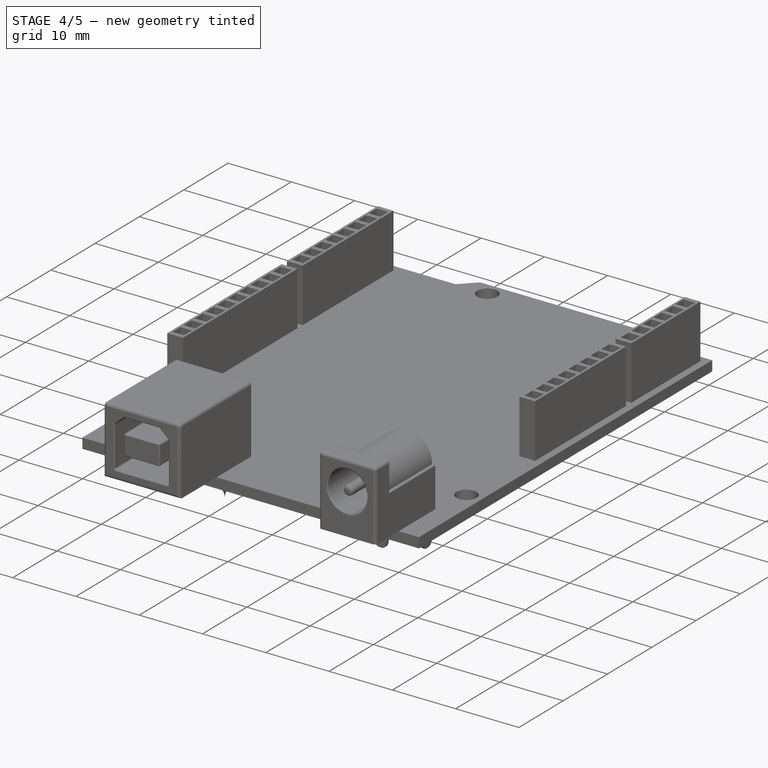
[diagram: stage 4 of 5 — iso view after this stage's code; geometry added in this stage tinted green]
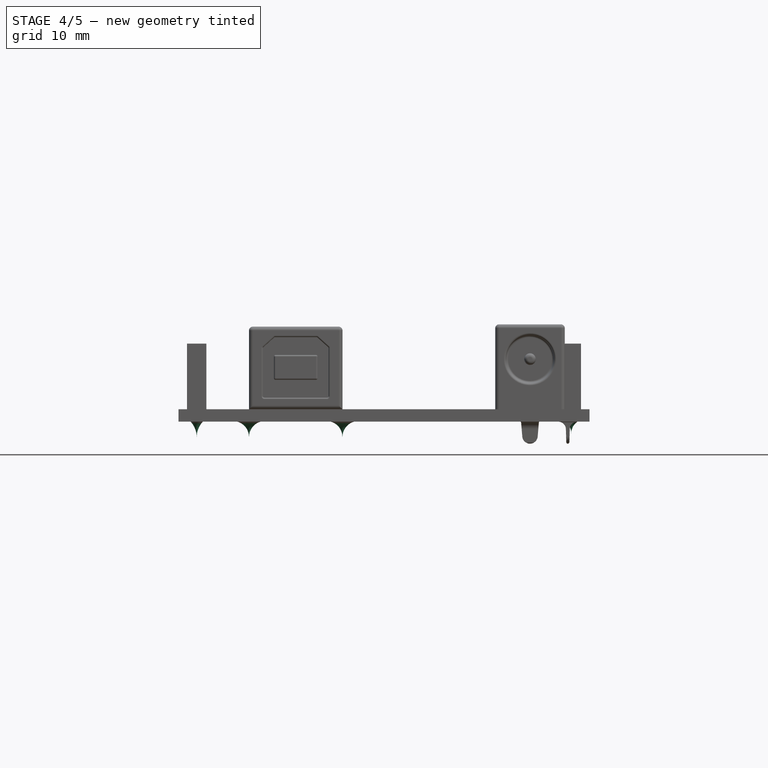
[diagram: stage 4 of 5 — front view after this stage's code; geometry added in this stage tinted green]
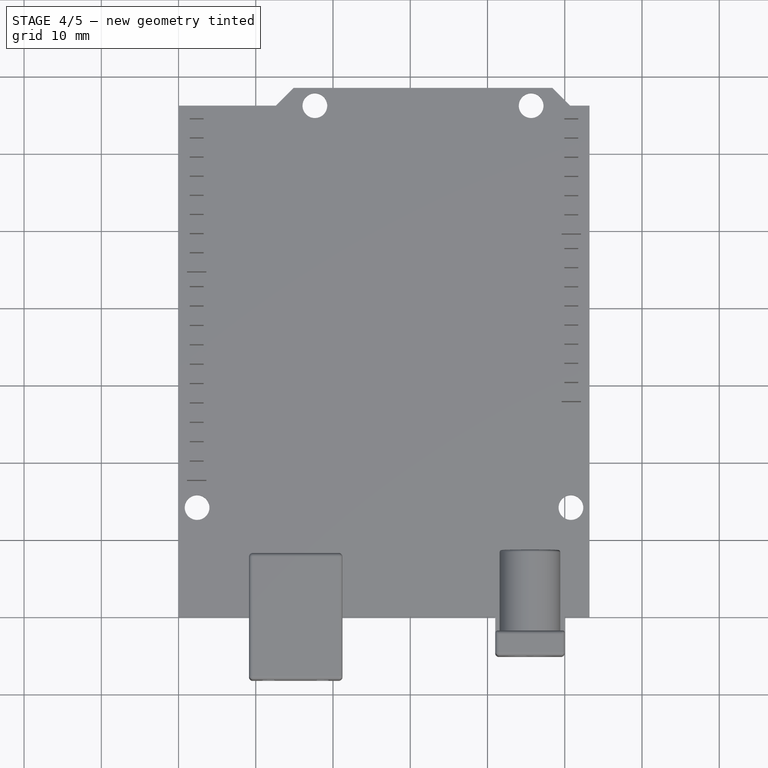
[diagram: stage 4 of 5 — top view after this stage's code; geometry added in this stage tinted green]
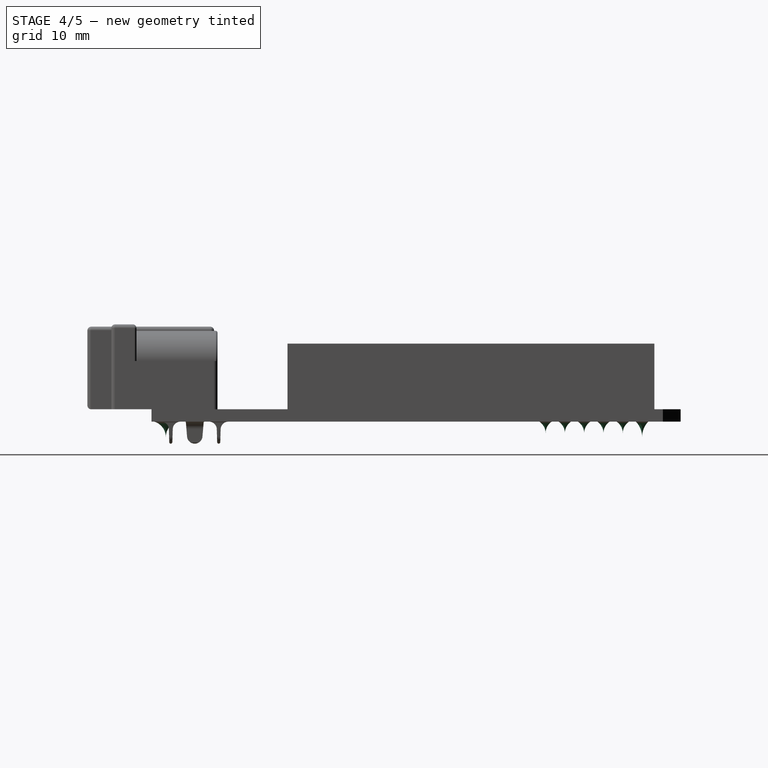
[diagram: stage 4 of 5 — right view after this stage's code; geometry added in this stage tinted green]
FEATURE [Sketcher::SketchObject] Sketch013
  FullyConstrained = true
  MapMode = 5
  Placement = pos=(21.22,0,0) rot=(0.57735,0.57735,0.57735;2.0944rad)
  Support = -> [Pocket005]
  sketch-geometry (4):
    g0: ArcOfCircle CenterX=-0.233333 CenterY=-2 CenterZ=0 NormalX=0 NormalY=0 NormalZ=1 AngleXU=0 Radius=2.08333 StartAngle=0 EndAngle=1.287
    g1: LineSegment StartX=0.35 StartY=0 StartZ=0 EndX=1.85 EndY=0 EndZ=0
    g2: LineSegment StartX=1.85 StartY=0 StartZ=0 EndX=1.85 EndY=-2 EndZ=0
    g3: LineSegment StartX=1.85 StartY=0 StartZ=0 EndX=1.85 EndY=-2 EndZ=0
  constraints (11):
    c: Coincident(g1,g0)
    c: Horizontal(g1)
    c: Coincident(g2,g1)
    c: Vertical(g2)
    c: Coincident(g3,g1)
    c: Coincident(g3,g0)
    c: DistanceY(g0,g1) = 2
    c: Horizontal(g0,g-1)
    c: DistanceX(g-1,g0) = 1.85
    c: Tangent(g2,g0) = 1.5708
    c: DistanceX(g0,g1) = 1.5
FEATURE [PartDesign::Revolution] Revolution
  Angle = 360
  Axis = (0,0,-2)
  Base = (21.22,1.85,0)
  BaseFeature = -> Pocket005
  Profile = -> Sketch013
  ReferenceAxis = -> Sketch013 [Axis0]
  Reversed = true
FEATURE [PartDesign::Plane] DatumPlane002
  Length = 107.175
  MapMode = 45
  Placement = pos=(15.17,-7.8,1.6) rot=(0.57735,0.57735,0.57735;2.0944rad)
  ResizeMode = 0
  Support = -> [Revolution]
  Width = 63.6748
FEATURE [PartDesign::Mirrored] Mirrored
  BaseFeature = -> Revolution
  MirrorPlane = -> DatumPlane002
  Originals = -> [Revolution]
  Overlap = 0
FEATURE [Sketcher::SketchObject] Sketch014
  ExternalGeometry = -> [Mirrored]
  FullyConstrained = true
  MapMode = 5
  Placement = pos=(0,0,0) rot=(1,0,0;3.14159rad)
  Support = -> [Mirrored]
  sketch-geometry (43):
    g0: LineSegment StartX=50.85 StartY=-51.0857 StartZ=0 EndX=50.85 EndY=-53.5714 EndZ=0
    g1: LineSegment StartX=50.85 StartY=-53.5714 StartZ=0 EndX=50.85 EndY=-56.0571 EndZ=0
    g2: LineSegment StartX=50.85 StartY=-56.0571 StartZ=0 EndX=50.85 EndY=-58.5429 EndZ=0
    g3: LineSegment StartX=50.85 StartY=-58.5429 StartZ=0 EndX=50.85 EndY=-61.0286 EndZ=0
    g4: LineSegment StartX=50.85 StartY=-61.0286 StartZ=0 EndX=50.85 EndY=-63.5143 EndZ=0
    g5: LineSegment StartX=49.95 StartY=-50.1857 StartZ=0 EndX=50.85 EndY=-51.0857 EndZ=0
    g6: LineSegment StartX=51.75 StartY=-50.1857 StartZ=0 EndX=50.85 EndY=-51.0857 EndZ=0
    g7: LineSegment StartX=50.85 StartY=-63.5143 StartZ=0 EndX=51.75 EndY=-64.4143 EndZ=0
    g8: LineSegment StartX=49.95 StartY=-64.4143 StartZ=0 EndX=50.85 EndY=-63.5143 EndZ=0
    g9: LineSegment StartX=50.85 StartY=-51.0857 StartZ=0 EndX=49.95 EndY=-51.9857 EndZ=0
    g10: LineSegment StartX=50.85 StartY=-29.3778 StartZ=0 EndX=50.85 EndY=-31.8556 EndZ=0
    g11: LineSegment StartX=50.85 StartY=-31.8556 StartZ=0 EndX=50.85 EndY=-34.3333 EndZ=0
    g12: LineSegment StartX=50.85 StartY=-34.3333 StartZ=0 EndX=50.85 EndY=-36.8111 EndZ=0
    g13: LineSegment StartX=50.85 StartY=-36.8111 StartZ=0 EndX=50.85 EndY=-39.2889 EndZ=0
    g14: LineSegment StartX=50.85 StartY=-39.2889 StartZ=0 EndX=50.85 EndY=-41.7667 EndZ=0
    g15: LineSegment StartX=50.85 StartY=-41.7667 StartZ=0 EndX=50.85 EndY=-44.2444 EndZ=0
    g16: LineSegment StartX=50.85 StartY=-44.2444 StartZ=0 EndX=50.85 EndY=-46.7222 EndZ=0
    g17: LineSegment StartX=50.85 StartY=-29.3778 StartZ=0 EndX=49.95 EndY=-28.4778 EndZ=0
    g18: LineSegment StartX=50.85 StartY=-46.7222 StartZ=0 EndX=49.95 EndY=-47.6222 EndZ=0
    g19: LineSegment StartX=2.35 StartY=-46.1778 StartZ=0 EndX=2.35 EndY=-48.6556 EndZ=0
    g20: LineSegment StartX=2.35 StartY=-48.6556 StartZ=0 EndX=2.35 EndY=-51.1333 EndZ=0
    g21: LineSegment StartX=2.35 StartY=-51.1333 StartZ=0 EndX=2.35 EndY=-53.6111 EndZ=0
    g22: LineSegment StartX=2.35 StartY=-53.6111 StartZ=0 EndX=2.35 EndY=-56.0889 EndZ=0
    g23: LineSegment StartX=2.35 StartY=-56.0889 StartZ=0 EndX=2.35 EndY=-58.5667 EndZ=0
    g24: LineSegment StartX=2.35 StartY=-58.5667 StartZ=0 EndX=2.35 EndY=-61.0444 EndZ=0
    g25: LineSegment StartX=2.35 StartY=-61.0444 StartZ=0 EndX=2.35 EndY=-63.5222 EndZ=0
    g26: LineSegment StartX=2.35 StartY=-46.1778 StartZ=0 EndX=1.45 EndY=-45.2778 EndZ=0
    g27: LineSegment StartX=2.35 StartY=-46.1778 StartZ=0 EndX=1.45 EndY=-47.0778 EndZ=0
    g28: LineSegment StartX=2.35 StartY=-63.5222 StartZ=0 EndX=3.25 EndY=-64.4222 EndZ=0
    g29: LineSegment StartX=2.35 StartY=-63.5222 StartZ=0 EndX=1.45 EndY=-64.4222 EndZ=0
    g30: LineSegment StartX=2.35 StartY=-19.2091 StartZ=0 EndX=2.35 EndY=-21.7182 EndZ=0
    g31: LineSegment StartX=2.35 StartY=-21.7182 StartZ=0 EndX=2.35 EndY=-24.2273 EndZ=0
    g32: LineSegment StartX=2.35 StartY=-24.2273 StartZ=0 EndX=2.35 EndY=-26.7364 EndZ=0
    g33: LineSegment StartX=2.35 StartY=-26.7364 StartZ=0 EndX=2.35 EndY=-29.2455 EndZ=0
    g34: LineSegment StartX=2.35 StartY=-29.2455 StartZ=0 EndX=2.35 EndY=-31.7545 EndZ=0
    g35: LineSegment StartX=2.35 StartY=-31.7545 StartZ=0 EndX=2.35 EndY=-34.2636 EndZ=0
    g36: LineSegment StartX=2.35 StartY=-34.2636 StartZ=0 EndX=2.35 EndY=-36.7727 EndZ=0
    g37: LineSegment StartX=2.35 StartY=-36.7727 StartZ=0 EndX=2.35 EndY=-39.2818 EndZ=0
    g38: LineSegment StartX=2.35 StartY=-39.2818 StartZ=0 EndX=2.35 EndY=-41.7909 EndZ=0
    g39: LineSegment StartX=2.35 StartY=-19.2091 StartZ=0 EndX=1.45 EndY=-18.3091 EndZ=0
    g40: LineSegment StartX=2.35 StartY=-19.2091 StartZ=0 EndX=3.25 EndY=-18.3091 EndZ=0
    g41: LineSegment StartX=2.35 StartY=-41.7909 StartZ=0 EndX=1.45 EndY=-40.8909 EndZ=0
    g42: LineSegment StartX=2.35 StartY=-41.7909 StartZ=0 EndX=1.45 EndY=-42.6909 EndZ=0
  constraints (118):
    c: Vertical(g0)
    c: Vertical(g1)
    c: Coincident(g2,g1)
    c: Vertical(g2)
    c: Coincident(g3,g2)
    c: Vertical(g3)
    c: Coincident(g4,g3)
    c: Vertical(g4)
    c: Equal(g4,g3)
    c: Equal(g3,g2)
    c: Equal(g2,g1)
    c: Coincident(g5,g-7)
    c: Coincident(g5,g0)
    c: Coincident(g6,g-8)
    c: Coincident(g6,g0)
    c: Coincident(g7,g4)
    c: Coincident(g7,g-10)
    c: Coincident(g8,g-9)
    c: Coincident(g8,g4)
    c: Equal(g8,g7)
    c: Equal(g7,g5)
    c: Coincident(g9,g0)
    c: Coincident(g9,g-7)
    c: Equal(g9,g5)
    c: Vertical(g10)
    c: Vertical(g11)
    c: Coincident(g11,g12)
    c: Vertical(g12)
    c: Coincident(g12,g13)
    c: Vertical(g13)
    c: Coincident(g13,g14)
    c: Vertical(g14)
    c: Coincident(g14,g15)
    c: Vertical(g15)
    c: Coincident(g15,g16)
    c: Vertical(g16)
    c: Equal(g16,g15)
    c: Equal(g15,g14)
    c: Equal(g14,g13)
    c: Equal(g13,g12)
    c: Equal(g12,g11)
    c: Vertical(g16,g0)
    c: Coincident(g17,g10)
    c: Coincident(g17,g-3)
    c: Coincident(g18,g16)
    c: Coincident(g18,g-5)
    c: Equal(g18,g17)
    c: Equal(g17,g5)
    c: Vertical(g19)
    c: Vertical(g20)
    c: Coincident(g20,g21)
    c: Vertical(g21)
    c: Coincident(g21,g22)
    c: Vertical(g22)
    c: Coincident(g22,g23)
    c: Vertical(g23)
    c: Coincident(g23,g24)
    c: Vertical(g24)
    c: Coincident(g24,g25)
    c: Vertical(g25)
    c: Equal(g20,g21)
    c: Equal(g21,g22)
    c: Equal(g22,g23)
    c: Equal(g23,g24)
    c: Equal(g24,g25)
    c: Coincident(g26,g19)
    c: Coincident(g26,g-15)
    c: Coincident(g27,g19)
    c: Coincident(g28,g25)
    c: Coincident(g28,g-18)
    c: Equal(g28,g26)
    c: Equal(g26,g27)
    c: Coincident(g27,g-15)
    c: Coincident(g29,g25)
    c: Coincident(g29,g-17)
    c: Equal(g29,g28)
    c: Vertical(g30)
    c: Vertical(g31)
    c: Coincident(g31,g32)
    c: Vertical(g32)
    c: Coincident(g32,g33)
    c: Vertical(g33)
    c: Coincident(g33,g34)
    c: Vertical(g34)
    c: Coincident(g34,g35)
    c: Vertical(g35)
    c: Coincident(g35,g36)
    c: Vertical(g36)
    c: Coincident(g36,g37)
    c: Vertical(g37)
    c: Coincident(g37,g38)
    c: Vertical(g38)
    c: Equal(g31,g32)
    c: Equal(g32,g33)
    c: Equal(g33,g34)
    c: Equal(g34,g35)
    c: Equal(g35,g36)
    c: Equal(g36,g37)
    c: Equal(g37,g38)
    c: Equal(g38,g30)
    c: Coincident(g39,g30)
    c: Coincident(g39,g-11)
    c: Coincident(g40,g30)
    c: Coincident(g40,g-12)
    c: Coincident(g41,g38)
    c: Coincident(g41,g-13)
    c: Coincident(g42,g38)
    c: Coincident(g42,g-13)
    c: Equal(g42,g41)
    c: Equal(g41,g39)
    c: Equal(g39,g40)
    c: Coincident(g1,g0)
    c: Equal(g0,g1)
    c: Coincident(g11,g10)
    c: Equal(g11,g10)
    c: Coincident(g19,g20)
    c: Equal(g20,g19)
    c: Coincident(g31,g30)
FEATURE [PartDesign::Plane] DatumPlane003
  Length = 90.706
  MapMode = 7
  Placement = pos=(50.85,63.5143,0) rot=(1,0,0;1.5708rad)
  ResizeMode = 0
  Support = -> [Sketch014]
  Width = 62.506
FEATURE [Sketcher::SketchObject] Sketch015
  FullyConstrained = true
  MapMode = 5
  Placement = pos=(50.85,63.5143,0) rot=(1,0,0;1.5708rad)
  Support = -> [DatumPlane003]
  sketch-geometry (4):
    g0: ArcOfCircle CenterX=-1.80625 CenterY=-1.5 CenterZ=0 NormalX=0 NormalY=0 NormalZ=1 AngleXU=0 Radius=1.80625 StartAngle=0 EndAngle=0.979915
    g1: LineSegment StartX=-0.8 StartY=0 StartZ=0 EndX=0 EndY=0 EndZ=0
    g2: LineSegment StartX=0 StartY=0 StartZ=0 EndX=0 EndY=-1.5 EndZ=0
    g3: LineSegment StartX=0 StartY=0 StartZ=0 EndX=0 EndY=-1.5 EndZ=0
  constraints (10):
    c: DistanceY(g0,g-1) = 1.5
    c: Vertical(g-1,g0)
    c: Coincident(g0,g1)
    c: Coincident(g1,g2)
    c: Tangent(g2,g0) = 1.5708
    c: DistanceX(g0,g1) = 0.8
    c: Horizontal(g1)
    c: Coincident(g1,g-1)
    c: Coincident(g3,g1)
    c: Coincident(g3,g0)
FEATURE [PartDesign::Revolution] Revolution001
  Angle = 360
  Axis = (0,2e-16,1)
  Base = (50.85,63.5143,0)
  BaseFeature = -> Mirrored
  Profile = -> Sketch015
  ReferenceAxis = -> Sketch015 [V_Axis]
FEATURE [PartDesign::LinearPattern] LinearPattern
  BaseFeature = -> Revolution001
  Direction = -> Sketch014 [Edge5]
  Length = 12.5
  Occurrences = 6
  Originals = -> [Revolution001]
  Overlap = 0
FEATURE [Sketcher::SketchObject] Sketch016
  ExternalGeometry = -> [Sketch014]
  FullyConstrained = true
  MapMode = 5
  Placement = pos=(50.85,63.5143,0) rot=(1,0,0;1.5708rad)
  Support = -> [DatumPlane003]
  sketch-geometry (4):
    g0: ArcOfCircle CenterX=-51.4 CenterY=-2 CenterZ=0 NormalX=0 NormalY=0 NormalZ=1 AngleXU=0 Radius=2.9 StartAngle=0 EndAngle=0.761013
    g1: LineSegment StartX=-49.3 StartY=-9.8e-15 StartZ=0 EndX=-48.5 EndY=-9.8e-15 EndZ=0
    g2: LineSegment StartX=-48.5 StartY=-2 StartZ=0 EndX=-48.5 EndY=-9.8e-15 EndZ=0
    g3: LineSegment StartX=-48.5 StartY=-2 StartZ=0 EndX=-48.5 EndY=-9.8e-15 EndZ=0
  constraints (10):
    c: Coincident(g1,g0)
    c: Horizontal(g1)
    c: Coincident(g2,g1)
    c: DistanceY(g0,g1) = 2
    c: DistanceX(g0,g1) = 0.8
    c: Vertical(g2)
    c: Tangent(g2,g0) = -1.5708
    c: Coincident(g1,g-3)
    c: Coincident(g3,g0)
    c: Coincident(g3,g1)
FEATURE [PartDesign::Revolution] Revolution002
  Angle = 360
  Axis = (0,4e-16,2)
  Base = (2.35,63.5143,-2)
  BaseFeature = -> LinearPattern
  Profile = -> Sketch016
  ReferenceAxis = -> Sketch016 [Axis0]
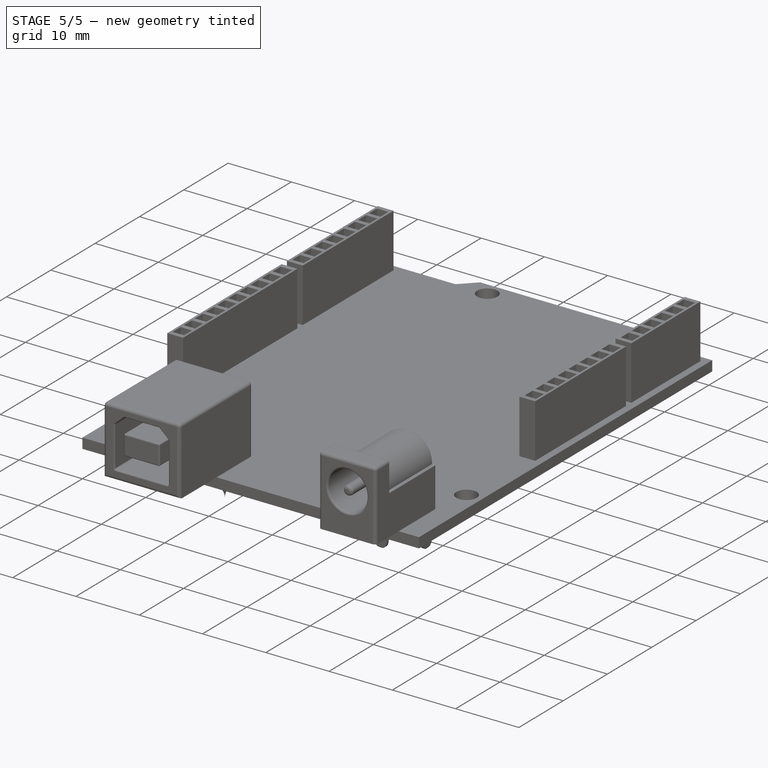
[diagram: stage 5 of 5 — iso view after this stage's code; geometry added in this stage tinted green]
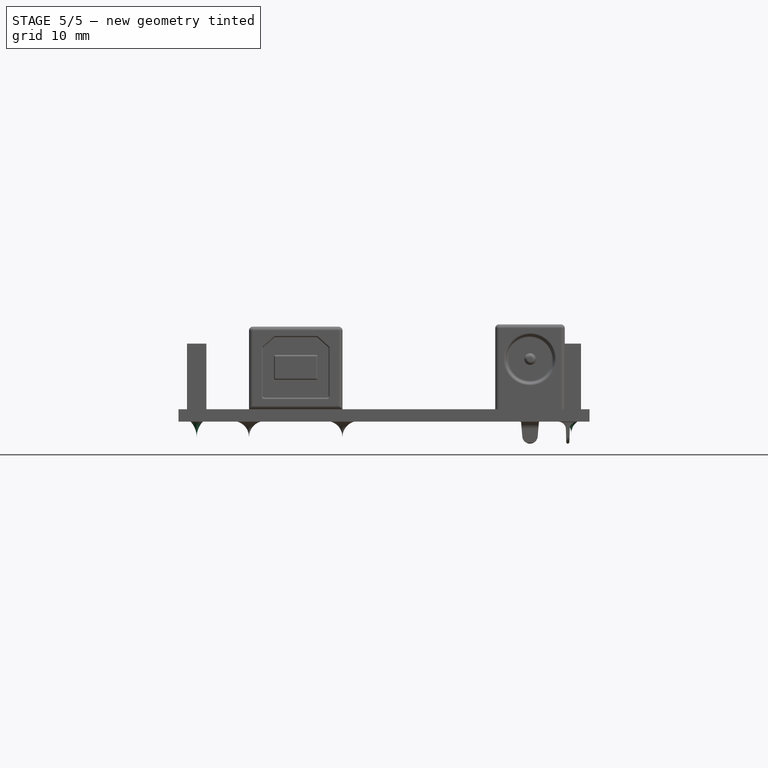
[diagram: stage 5 of 5 — front view after this stage's code; geometry added in this stage tinted green]
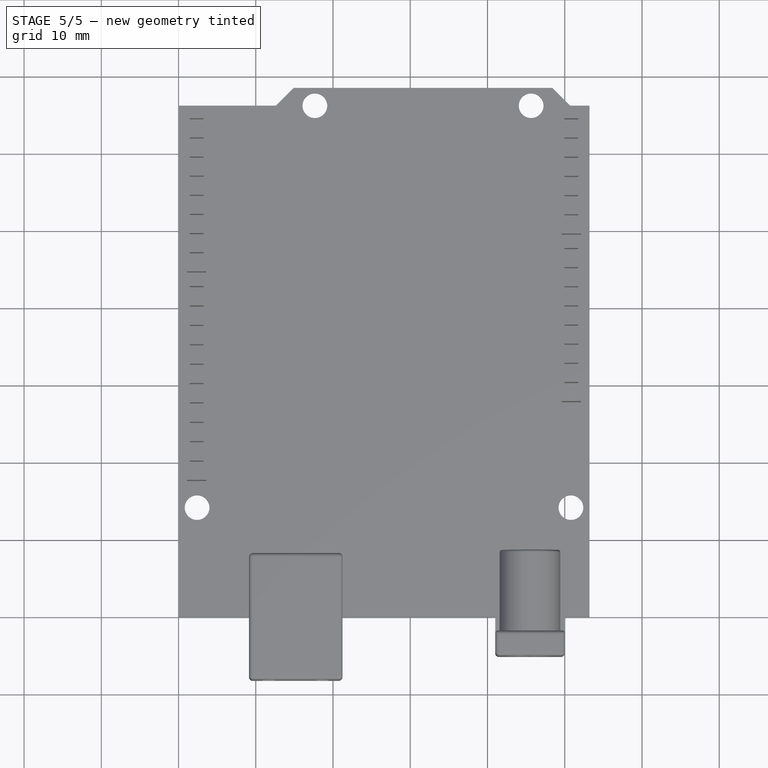
[diagram: stage 5 of 5 — top view after this stage's code; geometry added in this stage tinted green]
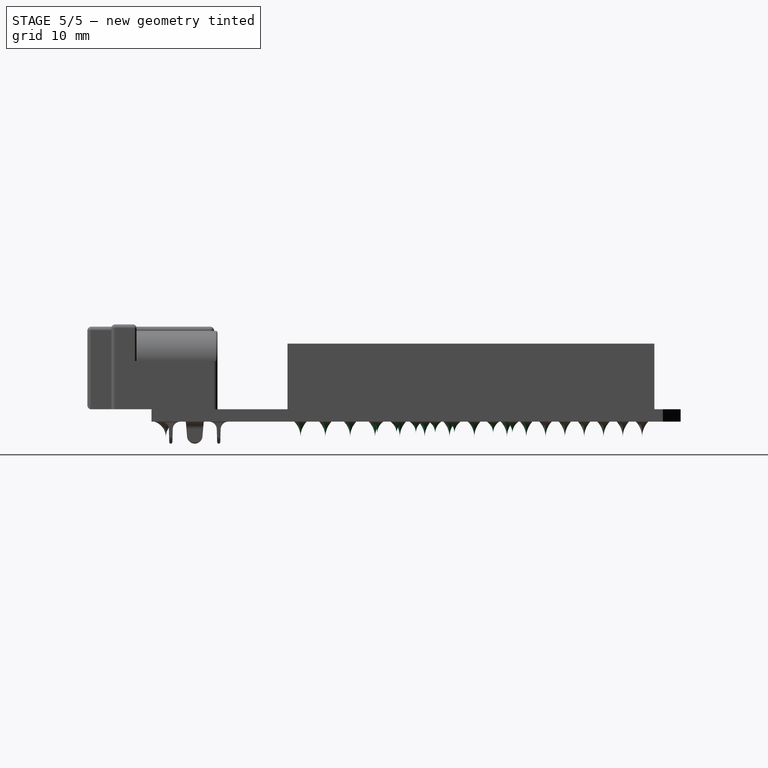
[diagram: stage 5 of 5 — right view after this stage's code; geometry added in this stage tinted green]
FEATURE [PartDesign::LinearPattern] LinearPattern001
  BaseFeature = -> Revolution002
  Direction = -> Sketch014 [Edge19]
  Length = 17.5
  Occurrences = 8
  Originals = -> [Revolution002]
  Overlap = 0
FEATURE [PartDesign::Plane] DatumPlane004
  Length = 90.706
  MapMode = 7
  Placement = pos=(2.35,41.7909,0) rot=(1,0,0;1.5708rad)
  ResizeMode = 0
  Support = -> [Sketch014]
  Width = 62.506
FEATURE [Sketcher::SketchObject] Sketch017
  ExternalGeometry = -> [Sketch016]
  FullyConstrained = true
  MapMode = 5
  Placement = pos=(2.35,41.7909,0) rot=(1,0,0;1.5708rad)
  Support = -> [DatumPlane004]
  sketch-geometry (4):
    g0: ArcOfCircle CenterX=-2.9 CenterY=-2 CenterZ=0 NormalX=0 NormalY=0 NormalZ=1 AngleXU=0 Radius=2.9 StartAngle=-4.4e-15 EndAngle=0.761013
    g1: LineSegment StartX=-0.8 StartY=-6.2e-15 StartZ=0 EndX=0 EndY=0 EndZ=0
    g2: LineSegment StartX=0 StartY=0 StartZ=0 EndX=0 EndY=-2 EndZ=0
    g3: LineSegment StartX=0 StartY=0 StartZ=0 EndX=0 EndY=-2 EndZ=0
  constraints (9):
    c: Coincident(g0,g-3)
    c: Coincident(g0,g-3)
    c: Tangent(g0,g-3)
    c: Coincident(g1,g0)
    c: Coincident(g1,g-1)
    c: Coincident(g2,g1)
    c: Coincident(g2,g0)
    c: Coincident(g3,g1)
    c: Coincident(g3,g0)
FEATURE [PartDesign::Revolution] Revolution003
  Angle = 360
  Axis = (0,-4e-16,-2)
  Base = (2.35,41.7909,0)
  BaseFeature = -> LinearPattern001
  Profile = -> Sketch017
  ReferenceAxis = -> Sketch017 [Axis0]
  Reversed = true
FEATURE [PartDesign::LinearPattern] LinearPattern002
  BaseFeature = -> Revolution003
  Direction = -> Sketch014 [Edge27]
  Length = 22.5
  Occurrences = 8
  Originals = -> [Revolution003]
  Overlap = 0
FEATURE [PartDesign::Plane] DatumPlane005
  Length = 90.706
  MapMode = 7
  Placement = pos=(50.85,46.7222,0) rot=(1,0,0;1.5708rad)
  ResizeMode = 0
  Support = -> [Sketch014]
  Width = 62.506
FEATURE [Sketcher::SketchObject] Sketch018
  FullyConstrained = true
  MapMode = 5
  Placement = pos=(50.85,46.7222,0) rot=(1,0,0;1.5708rad)
  Support = -> [DatumPlane005]
  expr: Constraints[0] = Sketch015.Constraints[0]
  expr: Constraints[5] = Sketch015.Constraints[5]
  sketch-geometry (6):
    g0: ArcOfCircle CenterX=-1.80625 CenterY=-1.5 CenterZ=0 NormalX=0 NormalY=0 NormalZ=1 AngleXU=0 Radius=1.80625 StartAngle=0 EndAngle=0.979915
    g1: LineSegment StartX=-0.8 StartY=-2e-16 StartZ=0 EndX=0 EndY=-2e-16 EndZ=0
    g2: LineSegment StartX=0 StartY=-2e-16 StartZ=0 EndX=0 EndY=-1.5 EndZ=0
    g3: LineSegment StartX=0 StartY=-2e-16 StartZ=0 EndX=0 EndY=-1.5 EndZ=0
    g4: LineSegment StartX=0 StartY=-2e-16 StartZ=0 EndX=-0.8 EndY=-2e-16 EndZ=0
    g5: LineSegment StartX=0 StartY=-1.5 StartZ=0 EndX=0 EndY=-2e-16 EndZ=0
  constraints (14):
    c: DistanceY(g0,g-1) = 1.5
    c: Vertical(g-1,g0)
    c: Coincident(g0,g1)
    c: Coincident(g1,g2)
    c: Tangent(g2,g0) = 1.5708
    c: DistanceX(g0,g1) = 0.8
    c: Coincident(g1,g-1)
    c: Coincident(g3,g1)
    c: Coincident(g3,g0)
    c: Coincident(g4,g1)
    c: Coincident(g4,g0)
    c: Horizontal(g4)
    c: Coincident(g5,g0)
    c: Coincident(g5,g2)
FEATURE [PartDesign::Revolution] Revolution004
  Angle = 360
  Axis = (0,2e-16,1)
  Base = (50.85,46.7222,0)
  BaseFeature = -> LinearPattern002
  Profile = -> Sketch018
  ReferenceAxis = -> Sketch018 [V_Axis]
FEATURE [PartDesign::LinearPattern] LinearPattern003
  BaseFeature = -> Revolution004
  Direction = -> Sketch014 [Edge11]
  Length = 17.5
  Occurrences = 8
  Originals = -> [Revolution004]
  Overlap = 0
FEATURE [PartDesign::Body] Body
  Group = -> [Sketch,Pad,Sketch001,Pocket,Sketch002,Pad001,Sketch003,Pocket001,Fillet,Fillet001,Sketch004,Pad002,Sketch005,Pocket002,Sketch006,Pocket003,Fillet002,Fillet003,Sketch007,Pad003,DatumPlane,Sketch008,Pad004,Sketch009,Pocket004,DatumPlane001,Sketch011,Pad005,Sketch012,Pocket005,Sketch013,Revolution,DatumPlane002,Mirrored,Sketch014,DatumPlane003,Sketch015,Revolution001,LinearPattern,Sketch016,+10 more]
  Origin = -> Origin
  Tip = -> LinearPattern003
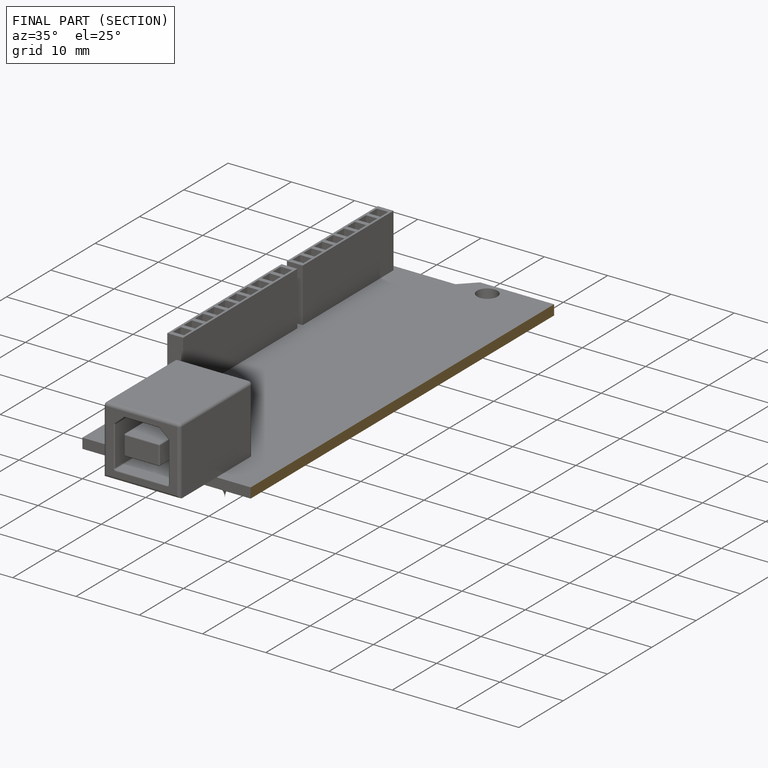
[diagram: finished part — half-section view (interior)]
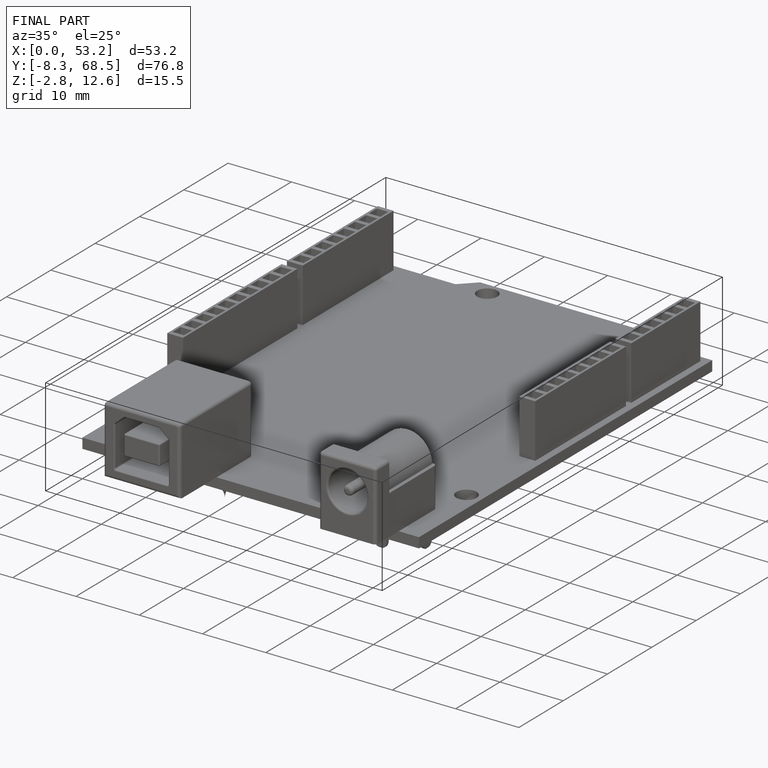
[diagram: finished part — iso view with bounding-box wireframe]
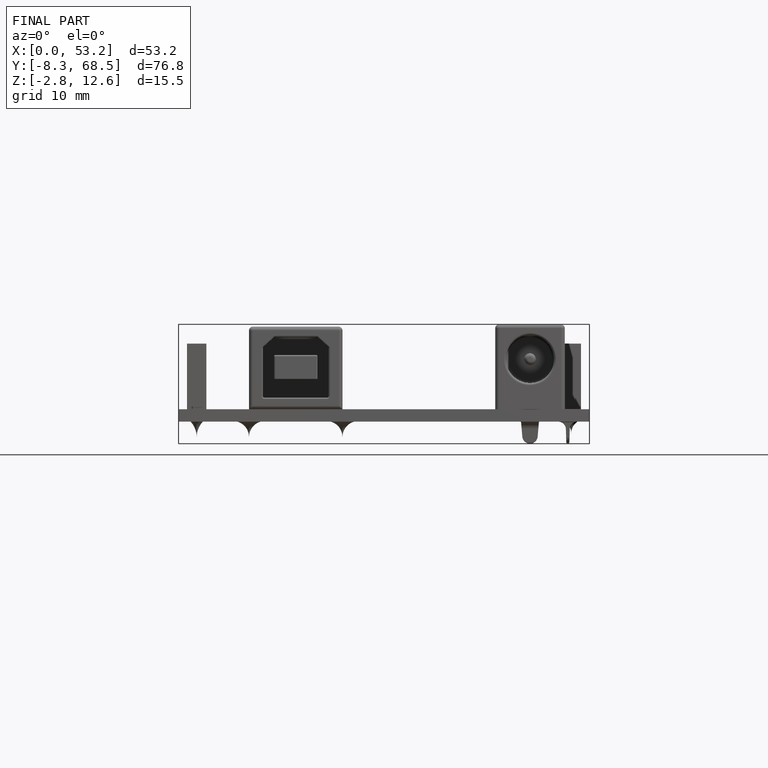
[diagram: finished part — front view with bounding-box wireframe]
